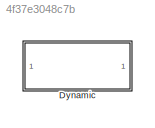
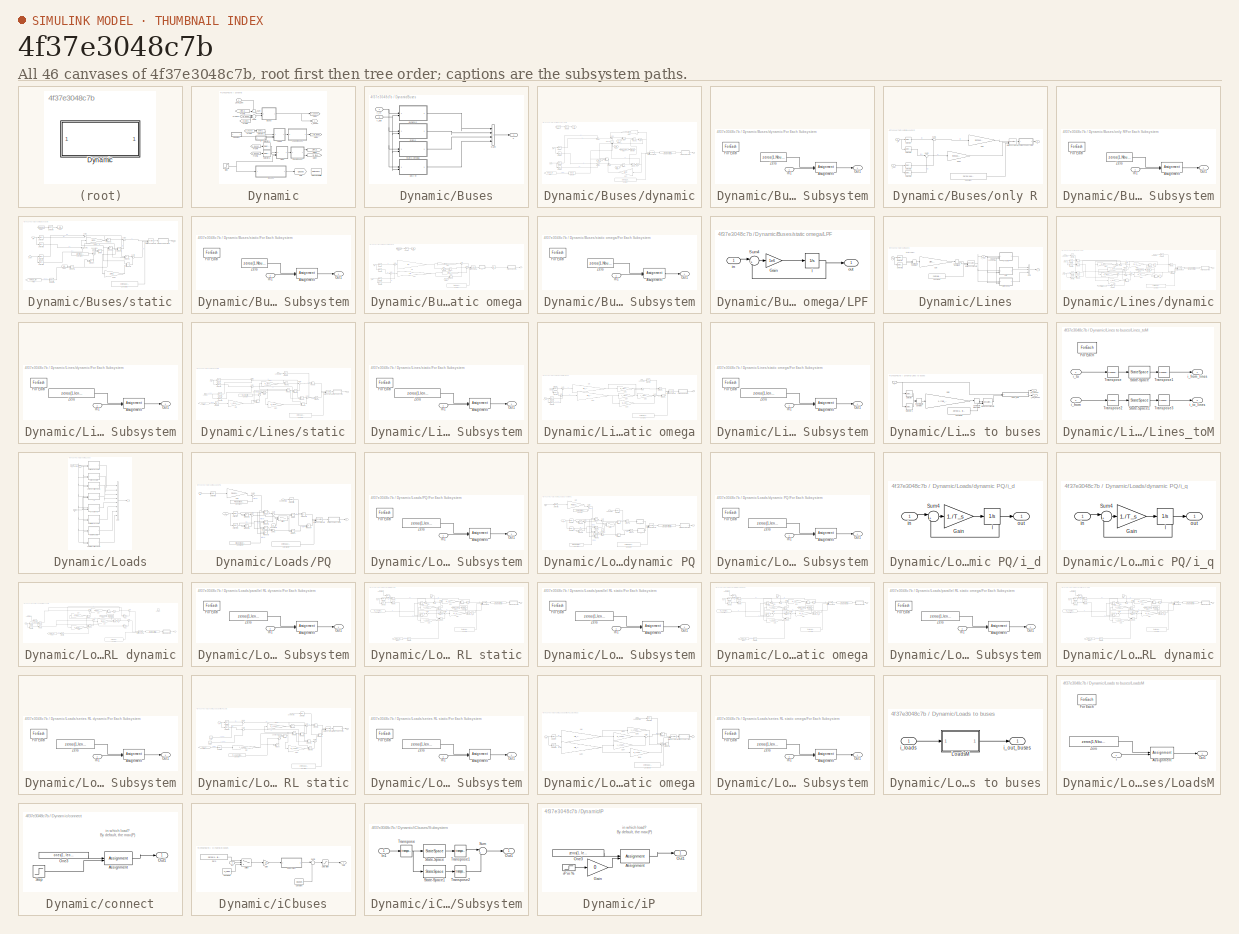
[diagram: thumbnail index - all 46 canvases of the model, root first then tree order]
MODEL slx_4f37e3048c7b
KIND model
CONFIG AbsTol = auto
CONFIG EnableMultiTasking = off
CONFIG FixedStep = auto
CONFIG MaxStep = auto
CONFIG MinStep = auto
CONFIG RelTol = 1e-3
CONFIG SampleTimeConstraint = Unconstrained
CONFIG SolverName = VariableStepAuto
CONFIG StartTime = 0.0
CONFIG StopTime = 10.0
BLOCK [SubSystem] Dynamic
  VariantControl = Dynamic
BLOCK [SubSystem] Dynamic/Buses
BLOCK [Sum] Dynamic/Buses/Sum
  IconShape = rectangular
  Inputs = |++++
BLOCK [SubSystem] Dynamic/Buses/dynamic
  VariantControl = dynamic
BLOCK [Constant] Dynamic/Buses/dynamic/Constant
  Value = zeros(1, sum(bus_complexity == 1))
  VectorParams1D = off
BLOCK [Product] Dynamic/Buses/dynamic/Divide
  Inputs = */
BLOCK [Product] Dynamic/Buses/dynamic/Divide1
  Inputs = */
BLOCK [SubSystem] Dynamic/Buses/dynamic/For Each Subsystem
  TreatAsAtomicUnit = on
BLOCK [Assignment] Dynamic/Buses/dynamic/For Each Subsystem/Assignment
  DiagnosticForDimensions = Warning
  IndexOptions = Index vector (dialog)
  Indices = find(bus_complexity == 1)
  OutputSizes = 1
BLOCK [ForEach] Dynamic/Buses/dynamic/For Each Subsystem/For Each
  DisableCoverage = on
BLOCK [Inport] Dynamic/Buses/dynamic/For Each Subsystem/In1
  Partition = on
  PartitionDimension = 1
  PartitionOffset = 0
  PartitionWidth = 1
BLOCK [Outport] Dynamic/Buses/dynamic/For Each Subsystem/Out1
  ConcatenationDimension = 1
BLOCK [Constant] Dynamic/Buses/dynamic/For Each Subsystem/Zero
  OutDataTypeStr = Inherit: Inherit via back propagation
  Value = zeros(1,Nbuses)
  VectorParams1D = off
BLOCK [From] Dynamic/Buses/dynamic/From
  GotoTag = omega_ref
  TagVisibility = scoped
BLOCK [From] Dynamic/Buses/dynamic/From1
  GotoTag = Cbuses
  TagVisibility = scoped
BLOCK [From] Dynamic/Buses/dynamic/From14
  GotoTag = omega_base
  TagVisibility = scoped
BLOCK [From] Dynamic/Buses/dynamic/From2
  GotoTag = Cb
BLOCK [From] Dynamic/Buses/dynamic/From3
  GotoTag = Cb
  NameLocation = top
BLOCK [From] Dynamic/Buses/dynamic/From4
  GotoTag = Cb
BLOCK [From] Dynamic/Buses/dynamic/From5
  GotoTag = Cb
BLOCK [Gain] Dynamic/Buses/dynamic/Gain1
  Gain = 1./Rcf(bus_complexity == 1)
  NameLocation = top
BLOCK [Gain] Dynamic/Buses/dynamic/Gain2
  Gain = 1./Rcf(bus_complexity == 1)
  NameLocation = top
BLOCK [Goto] Dynamic/Buses/dynamic/Goto
  GotoTag = Cb
BLOCK [Concatenate] Dynamic/Buses/dynamic/Matrix Concatenate
  Mode = Multidimensional array
  NumInputs = 3
BLOCK [Product] Dynamic/Buses/dynamic/Product
  Inputs = 3
BLOCK [Product] Dynamic/Buses/dynamic/Product1
  Inputs = 3
  NameLocation = right
BLOCK [Product] Dynamic/Buses/dynamic/Product2
BLOCK [Product] Dynamic/Buses/dynamic/Product3
BLOCK [Selector] Dynamic/Buses/dynamic/Selector
  IndexOptions = Index vector (dialog),Index vector (dialog)
  Indices = 1,find(bus_complexity == 1)
  InputPortWidth = 3
  NumberOfDimensions = 2
  OutputSizes = 1,1
BLOCK [Selector] Dynamic/Buses/dynamic/Selector1
  IndexOptions = Index vector (dialog),Index vector (dialog)
  Indices = 2,find(bus_complexity == 1)
  InputPortWidth = 3
  NumberOfDimensions = 2
  OutputSizes = 1,1
BLOCK [Selector] Dynamic/Buses/dynamic/Selector2
  IndexOptions = Index vector (dialog),Index vector (dialog)
  Indices = 1,find(bus_complexity == 1)
  InputPortWidth = 3
  NumberOfDimensions = 2
  OutputSizes = 1,1
BLOCK [Selector] Dynamic/Buses/dynamic/Selector3
  IndexOptions = Index vector (dialog),Index vector (dialog)
  Indices = 2,find(bus_complexity == 1)
  InputPortWidth = 3
  NumberOfDimensions = 2
  OutputSizes = 1,1
BLOCK [Selector] Dynamic/Buses/dynamic/Selector4
  IndexOptions = Index vector (dialog)
  Indices = fref.buses(bus_complexity == 1)
  InputPortWidth = length(fref.ref_units)
  OutputSizes = 1
BLOCK [Selector] Dynamic/Buses/dynamic/Selector5
  IndexOptions = Index vector (dialog)
  Indices = find(bus_complexity == 1)
  InputPortWidth = length(Cbuses)
  OutputSizes = 1
BLOCK [Selector] Dynamic/Buses/dynamic/Selector8
  IndexOptions = Index vector (dialog)
  Indices = fref.buses(bus_complexity == 1)
  InputPortWidth = length(fref.ref_units)
  OutputSizes = 1
BLOCK [SignalSpecification] Dynamic/Buses/dynamic/Signal Specification
  Dimensions = [3 sum(bus_complexity == 1)]
BLOCK [Sum] Dynamic/Buses/dynamic/Sum10
  Inputs = |-++
BLOCK [Sum] Dynamic/Buses/dynamic/Sum11
  Inputs = -+|
BLOCK [Sum] Dynamic/Buses/dynamic/Sum12
  Inputs = |+-
BLOCK [Sum] Dynamic/Buses/dynamic/Sum13
  Inputs = -+-|
BLOCK [Inport] Dynamic/Buses/dynamic/i_in
BLOCK [Inport] Dynamic/Buses/dynamic/i_out
  Port = 2
BLOCK [Outport] Dynamic/Buses/dynamic/v
BLOCK [Integrator] Dynamic/Buses/dynamic/vd
  InitialCondition = Grid_lf_op.op_report.Outputs(7).y(bus_complexity == 1)
BLOCK [Integrator] Dynamic/Buses/dynamic/vq
  InitialCondition = Grid_lf_op.op_report.Outputs(8).y(bus_complexity == 1)
BLOCK [Inport] Dynamic/Buses/i_in
BLOCK [Inport] Dynamic/Buses/i_out
  Port = 2
BLOCK [SubSystem] Dynamic/Buses/only R
  Commented = on
  VariantControl = only R
BLOCK [Constant] Dynamic/Buses/only R/Constant
  Value = zeros(1, sum(bus_complexity == 4))
  VectorParams1D = off
BLOCK [SubSystem] Dynamic/Buses/only R/For Each Subsystem
  TreatAsAtomicUnit = on
BLOCK [Assignment] Dynamic/Buses/only R/For Each Subsystem/Assignment
  DiagnosticForDimensions = Warning
  IndexOptions = Index vector (dialog)
  Indices = find(bus_complexity == 4)
  OutputSizes = 1
BLOCK [ForEach] Dynamic/Buses/only R/For Each Subsystem/For Each
  DisableCoverage = on
BLOCK [Inport] Dynamic/Buses/only R/For Each Subsystem/In1
  Partition = on
  PartitionDimension = 1
  PartitionOffset = 0
  PartitionWidth = 1
BLOCK [Outport] Dynamic/Buses/only R/For Each Subsystem/Out1
  ConcatenationDimension = 1
BLOCK [Constant] Dynamic/Buses/only R/For Each Subsystem/Zero
  OutDataTypeStr = Inherit: Inherit via back propagation
  Value = zeros(1,Nbuses)
  VectorParams1D = off
BLOCK [Gain] Dynamic/Buses/only R/Gain
  Gain = Rcf(bus_complexity == 4)
BLOCK [Gain] Dynamic/Buses/only R/Gain2
  Gain = Rcf(bus_complexity == 4)
BLOCK [Concatenate] Dynamic/Buses/only R/Matrix Concatenate
  Mode = Multidimensional array
  NumInputs = 3
BLOCK [Selector] Dynamic/Buses/only R/Selector
  IndexOptions = Index vector (dialog),Index vector (dialog)
  Indices = 1,find(bus_complexity == 4)
  InputPortWidth = 3
  NumberOfDimensions = 2
  OutputSizes = 1,1
BLOCK [Selector] Dynamic/Buses/only R/Selector1
  IndexOptions = Index vector (dialog),Index vector (dialog)
  Indices = 2,find(bus_complexity == 4)
  InputPortWidth = 3
  NumberOfDimensions = 2
  OutputSizes = 1,1
BLOCK [Selector] Dynamic/Buses/only R/Selector2
  IndexOptions = Index vector (dialog),Index vector (dialog)
  Indices = 1,find(bus_complexity == 4)
  InputPortWidth = 3
  NumberOfDimensions = 2
  OutputSizes = 1,1
BLOCK [Selector] Dynamic/Buses/only R/Selector3
  IndexOptions = Index vector (dialog),Index vector (dialog)
  Indices = 2,find(bus_complexity == 4)
  InputPortWidth = 3
  NumberOfDimensions = 2
  OutputSizes = 1,1
BLOCK [Sum] Dynamic/Buses/only R/Sum1
  Inputs = |+-
BLOCK [Sum] Dynamic/Buses/only R/Sum2
  Inputs = |+-
BLOCK [Inport] Dynamic/Buses/only R/i_in
BLOCK [Inport] Dynamic/Buses/only R/i_out
  Port = 2
BLOCK [Outport] Dynamic/Buses/only R/v
BLOCK [SubSystem] Dynamic/Buses/static
  Commented = on
  VariantControl = static
BLOCK [SubSystem] Dynamic/Buses/static omega
  Commented = on
  VariantControl = static omega
BLOCK [Constant] Dynamic/Buses/static omega/Constant
  Value = zeros(1, sum(bus_complexity == 3))
  VectorParams1D = off
BLOCK [SubSystem] Dynamic/Buses/static omega/For Each Subsystem
  TreatAsAtomicUnit = on
BLOCK [Assignment] Dynamic/Buses/static omega/For Each Subsystem/Assignment
  DiagnosticForDimensions = Warning
  IndexOptions = Index vector (dialog)
  Indices = find(bus_complexity == 3)
  OutputSizes = 1
BLOCK [ForEach] Dynamic/Buses/static omega/For Each Subsystem/For Each
  DisableCoverage = on
BLOCK [Inport] Dynamic/Buses/static omega/For Each Subsystem/In1
  Partition = on
  PartitionDimension = 1
  PartitionOffset = 0
  PartitionWidth = 1
BLOCK [Outport] Dynamic/Buses/static omega/For Each Subsystem/Out1
  ConcatenationDimension = 1
BLOCK [Constant] Dynamic/Buses/static omega/For Each Subsystem/Zero
  OutDataTypeStr = Inherit: Inherit via back propagation
  Value = zeros(1,Nbuses)
  VectorParams1D = off
BLOCK [From] Dynamic/Buses/static omega/From
  GotoTag = Cb
BLOCK [From] Dynamic/Buses/static omega/From1
  GotoTag = Cbuses
  TagVisibility = scoped
BLOCK [From] Dynamic/Buses/static omega/From2
  GotoTag = Cb
BLOCK [Gain] Dynamic/Buses/static omega/Gain
  Gain = 1./((1./Rcf(bus_complexity == 3)).^2+Cbuses(bus_complexity == 3).^2)
BLOCK [Gain] Dynamic/Buses/static omega/Gain1
  Gain = 1./((1./Rcf(bus_complexity == 3)).^2+Cbuses(bus_complexity == 3).^2)
BLOCK [Gain] Dynamic/Buses/static omega/Gain3
  Gain = 1./Rcf(bus_complexity == 3)
BLOCK [Gain] Dynamic/Buses/static omega/Gain5
  Gain = 1./Rcf(bus_complexity == 3)
BLOCK [Goto] Dynamic/Buses/static omega/Goto
  GotoTag = Cb
BLOCK [InitialCondition] Dynamic/Buses/static omega/IC
  Value = [Grid_lf_op.op_report.Outputs(7).y(bus_complexity == 3); Grid_lf_op.op_report.Outputs(8).y(bus_complexity == 3); 0*Grid_lf_op.op_report.Outputs(7).y(bus_complexity == 3)]
BLOCK [SubSystem] Dynamic/Buses/static omega/LPF
  Commented = through
BLOCK [Gain] Dynamic/Buses/static omega/LPF/Gain
  Gain = 1e6
BLOCK [Integrator] Dynamic/Buses/static omega/LPF/I
  InitialCondition = [Grid_lf_op.op_report.Outputs(7).y(bus_complexity == 3); Grid_lf_op.op_report.Outputs(8).y(bus_complexity == 3); 0*Grid_lf_op.op_report.Outputs(7).y(bus_complexity == 3)]
BLOCK [Sum] Dynamic/Buses/static omega/LPF/Sum4
  Inputs = |+-
BLOCK [Inport] Dynamic/Buses/static omega/LPF/in
BLOCK [Outport] Dynamic/Buses/static omega/LPF/out
BLOCK [Concatenate] Dynamic/Buses/static omega/Matrix Concatenate
  Mode = Multidimensional array
  NumInputs = 3
BLOCK [Product] Dynamic/Buses/static omega/Product
BLOCK [Product] Dynamic/Buses/static omega/Product1
BLOCK [Selector] Dynamic/Buses/static omega/Selector
  IndexOptions = Index vector (dialog),Index vector (dialog)
  Indices = 1,find(bus_complexity == 3)
  InputPortWidth = 3
  NumberOfDimensions = 2
  OutputSizes = 1,1
BLOCK [Selector] Dynamic/Buses/static omega/Selector1
  IndexOptions = Index vector (dialog),Index vector (dialog)
  Indices = 2,find(bus_complexity == 3)
  InputPortWidth = 3
  NumberOfDimensions = 2
  OutputSizes = 1,1
BLOCK [Selector] Dynamic/Buses/static omega/Selector2
  IndexOptions = Index vector (dialog),Index vector (dialog)
  Indices = 1,find(bus_complexity == 3)
  InputPortWidth = 3
  NumberOfDimensions = 2
  OutputSizes = 1,1
BLOCK [Selector] Dynamic/Buses/static omega/Selector3
  IndexOptions = Index vector (dialog),Index vector (dialog)
  Indices = 2,find(bus_complexity == 3)
  InputPortWidth = 3
  NumberOfDimensions = 2
  OutputSizes = 1,1
BLOCK [Selector] Dynamic/Buses/static omega/Selector5
  IndexOptions = Index vector (dialog)
  Indices = find(bus_complexity == 3)
  InputPortWidth = length(Cbuses)
  OutputSizes = 1
BLOCK [Sum] Dynamic/Buses/static omega/Sum
  Inputs = |++
BLOCK [Sum] Dynamic/Buses/static omega/Sum1
  Inputs = |+-
BLOCK [Sum] Dynamic/Buses/static omega/Sum2
  Inputs = |+-
BLOCK [Sum] Dynamic/Buses/static omega/Sum4
  Inputs = |-+
BLOCK [Inport] Dynamic/Buses/static omega/i_in
BLOCK [Inport] Dynamic/Buses/static omega/i_out
  Port = 2
BLOCK [Outport] Dynamic/Buses/static omega/v
BLOCK [Constant] Dynamic/Buses/static/Constant
  Value = (1./Rcf(bus_complexity == 2)).^2
  VectorParams1D = off
BLOCK [Constant] Dynamic/Buses/static/Constant1
BLOCK [Constant] Dynamic/Buses/static/Constant2
  Value = zeros(1, sum(bus_complexity == 2))
  VectorParams1D = off
BLOCK [Product] Dynamic/Buses/static/Divide
  Inputs = */
BLOCK [SubSystem] Dynamic/Buses/static/For Each Subsystem
  TreatAsAtomicUnit = on
BLOCK [Assignment] Dynamic/Buses/static/For Each Subsystem/Assignment
  DiagnosticForDimensions = Warning
  IndexOptions = Index vector (dialog)
  Indices = find(bus_complexity == 2)
  OutputSizes = 1
BLOCK [ForEach] Dynamic/Buses/static/For Each Subsystem/For Each
  DisableCoverage = on
BLOCK [Inport] Dynamic/Buses/static/For Each Subsystem/In1
  Partition = on
  PartitionDimension = 1
  PartitionOffset = 0
  PartitionWidth = 1
BLOCK [Outport] Dynamic/Buses/static/For Each Subsystem/Out1
  ConcatenationDimension = 1
BLOCK [Constant] Dynamic/Buses/static/For Each Subsystem/Zero
  OutDataTypeStr = Inherit: Inherit via back propagation
  Value = zeros(1,Nbuses)
  VectorParams1D = off
BLOCK [From] Dynamic/Buses/static/From
  GotoTag = omega_ref
  TagVisibility = scoped
BLOCK [From] Dynamic/Buses/static/From1
  GotoTag = Cbuses
  TagVisibility = scoped
BLOCK [From] Dynamic/Buses/static/From2
  GotoTag = Cb
BLOCK [Gain] Dynamic/Buses/static/Gain1
  Gain = 1./Rcf(bus_complexity == 2)
BLOCK [Gain] Dynamic/Buses/static/Gain2
  Gain = 1./Rcf(bus_complexity == 2)
BLOCK [Goto] Dynamic/Buses/static/Goto
  GotoTag = Cb
BLOCK [Concatenate] Dynamic/Buses/static/Matrix Concatenate
  Mode = Multidimensional array
  NumInputs = 3
BLOCK [Product] Dynamic/Buses/static/Product
BLOCK [Product] Dynamic/Buses/static/Product1
BLOCK [Product] Dynamic/Buses/static/Product2
BLOCK [Product] Dynamic/Buses/static/Product3
BLOCK [Product] Dynamic/Buses/static/Product4
BLOCK [Product] Dynamic/Buses/static/Product5
BLOCK [Product] Dynamic/Buses/static/Product6
BLOCK [Selector] Dynamic/Buses/static/Selector
  IndexOptions = Index vector (dialog),Index vector (dialog)
  Indices = 1,find(bus_complexity == 2)
  InputPortWidth = 3
  NumberOfDimensions = 2
  OutputSizes = 1,1
BLOCK [Selector] Dynamic/Buses/static/Selector1
  IndexOptions = Index vector (dialog),Index vector (dialog)
  Indices = 2,find(bus_complexity == 2)
  InputPortWidth = 3
  NumberOfDimensions = 2
  OutputSizes = 1,1
BLOCK [Selector] Dynamic/Buses/static/Selector2
  IndexOptions = Index vector (dialog),Index vector (dialog)
  Indices = 1,find(bus_complexity == 2)
  InputPortWidth = 3
  NumberOfDimensions = 2
  OutputSizes = 1,1
BLOCK [Selector] Dynamic/Buses/static/Selector3
  IndexOptions = Index vector (dialog),Index vector (dialog)
  Indices = 2,find(bus_complexity == 2)
  InputPortWidth = 3
  NumberOfDimensions = 2
  OutputSizes = 1,1
BLOCK [Selector] Dynamic/Buses/static/Selector4
  IndexOptions = Index vector (dialog)
  Indices = fref.buses(bus_complexity == 2)
  InputPortWidth = length(fref.ref_units)
  OutputSizes = 1
BLOCK [Selector] Dynamic/Buses/static/Selector5
  IndexOptions = Index vector (dialog)
  Indices = find(bus_complexity == 2)
  InputPortWidth = length(Cbuses)
  OutputSizes = 1
BLOCK [Sum] Dynamic/Buses/static/Sum
  Inputs = |++
BLOCK [Sum] Dynamic/Buses/static/Sum1
  Inputs = |-+
BLOCK [Sum] Dynamic/Buses/static/Sum2
  Inputs = |+-
BLOCK [Sum] Dynamic/Buses/static/Sum3
  Inputs = |++
BLOCK [Sum] Dynamic/Buses/static/Sum4
  Inputs = |-+
BLOCK [Inport] Dynamic/Buses/static/i_in
BLOCK [Inport] Dynamic/Buses/static/i_out
  Port = 2
BLOCK [Outport] Dynamic/Buses/static/v
BLOCK [Outport] Dynamic/Buses/v
BLOCK [From] Dynamic/From10
  GotoTag = i_to_loads
BLOCK [From] Dynamic/From3
  GotoTag = v_buses
BLOCK [From] Dynamic/From4
  GotoTag = v_buses
BLOCK [From] Dynamic/From5
  GotoTag = v_buses
BLOCK [From] Dynamic/From8
  GotoTag = i_from_lines
BLOCK [From] Dynamic/From9
  GotoTag = i_to_lines
BLOCK [Goto] Dynamic/Goto
  GotoTag = Cbuses
  TagVisibility = scoped
BLOCK [GotoTagVisibility] Dynamic/Goto Tag Visibility
  GotoTag = Cbuses
BLOCK [Goto] Dynamic/Goto1
  GotoTag = v_buses
BLOCK [Goto] Dynamic/Goto3
  GotoTag = i_from_lines
BLOCK [Goto] Dynamic/Goto4
  GotoTag = i_to_lines
BLOCK [Goto] Dynamic/Goto5
  GotoTag = i_to_loads
BLOCK [SubSystem] Dynamic/Lines
BLOCK [SubSystem] Dynamic/Lines to buses
BLOCK [ComplexToRealImag] Dynamic/Lines to buses/Complex to Real-Imag
BLOCK [Constant] Dynamic/Lines to buses/Constant1
  Value = zeros(1, length(R_Lines))
  VectorParams1D = off
BLOCK [Gain] Dynamic/Lines to buses/Gain
  Gain = 1./tap_lines.*(cos(shift_lines)-1i*sin(shift_lines))
BLOCK [SubSystem] Dynamic/Lines to buses/Lines_toM
  TreatAsAtomicUnit = on
BLOCK [ForEach] Dynamic/Lines to buses/Lines_toM/For Each
  DisableCoverage = on
BLOCK [StateSpace] Dynamic/Lines to buses/Lines_toM/State-Space
  A = []
  B = []
  C = []
  D = Lines_toM
  InitialCondition = 0
  ParameterTunability = Optimized
BLOCK [StateSpace] Dynamic/Lines to buses/Lines_toM/State-Space1
  A = []
  B = []
  C = []
  D = Lines_fromM
  InitialCondition = 0
  ParameterTunability = Optimized
BLOCK [Math] Dynamic/Lines to buses/Lines_toM/Transpose
  Operator = transpose
BLOCK [Math] Dynamic/Lines to buses/Lines_toM/Transpose1
  Operator = transpose
BLOCK [Math] Dynamic/Lines to buses/Lines_toM/Transpose2
  Operator = transpose
BLOCK [Math] Dynamic/Lines to buses/Lines_toM/Transpose3
  Operator = transpose
BLOCK [Inport] Dynamic/Lines to buses/Lines_toM/i_from
  Partition = on
  PartitionDimension = 1
  PartitionOffset = 0
  PartitionWidth = 1
  Port = 2
BLOCK [Outport] Dynamic/Lines to buses/Lines_toM/i_from_lines
  ConcatenationDimension = 1
BLOCK [Inport] Dynamic/Lines to buses/Lines_toM/i_to
  Partition = on
  PartitionDimension = 1
  PartitionOffset = 0
  PartitionWidth = 1
BLOCK [Outport] Dynamic/Lines to buses/Lines_toM/i_to_lines
  ConcatenationDimension = 1
  Port = 2
BLOCK [Concatenate] Dynamic/Lines to buses/Matrix Concatenate
  Mode = Multidimensional array
  NumInputs = 3
BLOCK [RealImagToComplex] Dynamic/Lines to buses/Real-Imag to Complex
BLOCK [Selector] Dynamic/Lines to buses/Selector
  IndexOptions = Index vector (dialog),Select all
  Indices = 1,1
  InputPortWidth = 3
  NumberOfDimensions = 2
  OutputSizes = 1,1
BLOCK [Selector] Dynamic/Lines to buses/Selector1
  IndexOptions = Index vector (dialog),Select all
  Indices = 2,1
  InputPortWidth = 3
  NumberOfDimensions = 2
  OutputSizes = 1,1
BLOCK [Inport] Dynamic/Lines to buses/i
BLOCK [Outport] Dynamic/Lines to buses/i_in_buses
BLOCK [Outport] Dynamic/Lines to buses/i_out_buses
  Port = 2
BLOCK [ComplexToRealImag] Dynamic/Lines/Complex to Real-Imag
BLOCK [Constant] Dynamic/Lines/Constant1
  Value = zeros(1, length(R_Lines))
  VectorParams1D = off
BLOCK [Gain] Dynamic/Lines/Gain
  Gain = 1./tap_lines.*(cos(shift_lines)-1i*sin(shift_lines))
BLOCK [Concatenate] Dynamic/Lines/Matrix Concatenate
  Mode = Multidimensional array
  NumInputs = 3
BLOCK [RealImagToComplex] Dynamic/Lines/Real-Imag to Complex
BLOCK [Selector] Dynamic/Lines/Selector
  IndexOptions = Index vector (dialog),Select all
  Indices = 1,1
  InputPortWidth = 3
  NumberOfDimensions = 2
  OutputSizes = 1,1
BLOCK [Selector] Dynamic/Lines/Selector1
  IndexOptions = Index vector (dialog),Select all
  Indices = 2,1
  InputPortWidth = 3
  NumberOfDimensions = 2
  OutputSizes = 1,1
BLOCK [Sum] Dynamic/Lines/Sum
  IconShape = rectangular
  Inputs = |+++
BLOCK [Inport] Dynamic/Lines/connected
  Port = 3
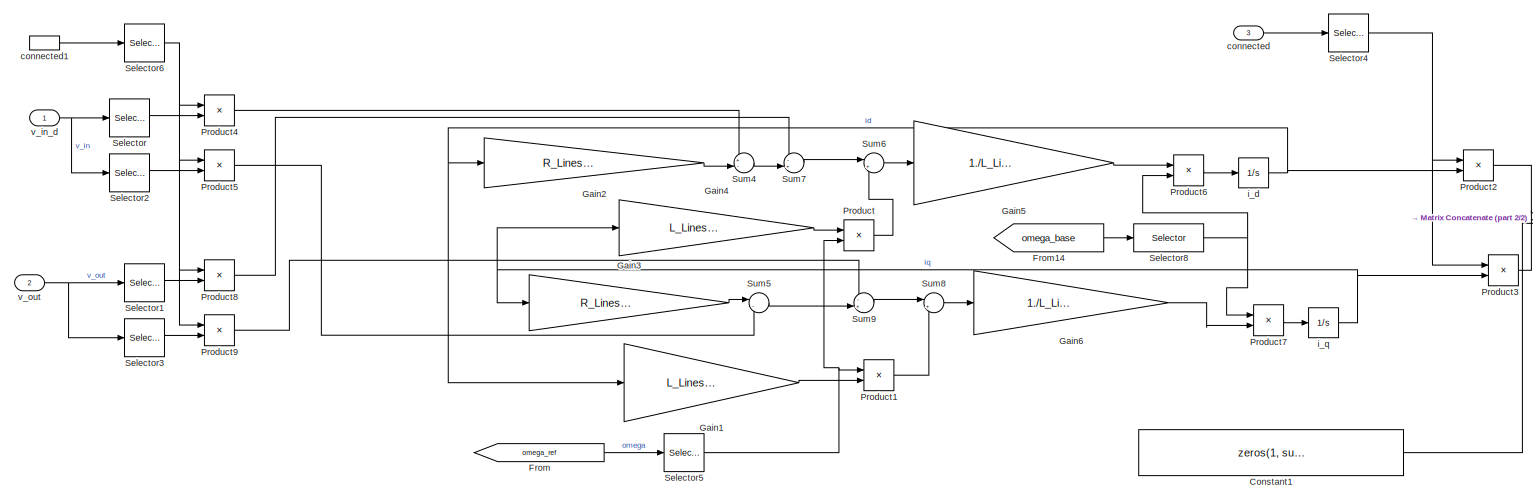
[diagram: Dynamic/Lines/dynamic - part 1/2, most of the canvas]
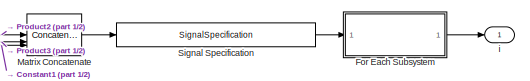
[diagram: Dynamic/Lines/dynamic - part 2/2, middle right region]
BLOCK [SubSystem] Dynamic/Lines/dynamic
  VariantControl = dynamic
BLOCK [Constant] Dynamic/Lines/dynamic/Constant1
  Value = zeros(1, sum(line_complexity == 1))
  VectorParams1D = off
BLOCK [SubSystem] Dynamic/Lines/dynamic/For Each Subsystem
  TreatAsAtomicUnit = on
BLOCK [Assignment] Dynamic/Lines/dynamic/For Each Subsystem/Assignment
  DiagnosticForDimensions = Warning
  IndexOptions = Index vector (dialog)
  Indices = find(line_complexity == 1)
  OutputSizes = 1
BLOCK [ForEach] Dynamic/Lines/dynamic/For Each Subsystem/For Each
  DisableCoverage = on
BLOCK [Inport] Dynamic/Lines/dynamic/For Each Subsystem/In1
  Partition = on
  PartitionDimension = 1
  PartitionOffset = 0
  PartitionWidth = 1
BLOCK [Outport] Dynamic/Lines/dynamic/For Each Subsystem/Out1
  ConcatenationDimension = 1
BLOCK [Constant] Dynamic/Lines/dynamic/For Each Subsystem/Zero
  OutDataTypeStr = Inherit: Inherit via back propagation
  Value = zeros(1,length(From_buses))
  VectorParams1D = off
BLOCK [From] Dynamic/Lines/dynamic/From
  GotoTag = omega_ref
  TagVisibility = scoped
BLOCK [From] Dynamic/Lines/dynamic/From14
  GotoTag = omega_base
  TagVisibility = scoped
BLOCK [Gain] Dynamic/Lines/dynamic/Gain1
  Gain = L_Lines(line_complexity == 1)
BLOCK [Gain] Dynamic/Lines/dynamic/Gain2
  Gain = R_Lines(line_complexity == 1)
BLOCK [Gain] Dynamic/Lines/dynamic/Gain3
  Gain = R_Lines(line_complexity == 1)
BLOCK [Gain] Dynamic/Lines/dynamic/Gain4
  Gain = L_Lines(line_complexity == 1)
BLOCK [Gain] Dynamic/Lines/dynamic/Gain5
  Gain = 1./L_Lines(line_complexity == 1)
BLOCK [Gain] Dynamic/Lines/dynamic/Gain6
  Gain = 1./L_Lines(line_complexity == 1)
BLOCK [Concatenate] Dynamic/Lines/dynamic/Matrix Concatenate
  Mode = Multidimensional array
  NumInputs = 3
BLOCK [Product] Dynamic/Lines/dynamic/Product
BLOCK [Product] Dynamic/Lines/dynamic/Product1
BLOCK [Product] Dynamic/Lines/dynamic/Product2
BLOCK [Product] Dynamic/Lines/dynamic/Product3
BLOCK [Product] Dynamic/Lines/dynamic/Product4
BLOCK [Product] Dynamic/Lines/dynamic/Product5
BLOCK [Product] Dynamic/Lines/dynamic/Product6
BLOCK [Product] Dynamic/Lines/dynamic/Product7
BLOCK [Product] Dynamic/Lines/dynamic/Product8
BLOCK [Product] Dynamic/Lines/dynamic/Product9
BLOCK [Selector] Dynamic/Lines/dynamic/Selector
  IndexOptions = Index vector (dialog),Index vector (dialog)
  Indices = 1,find(line_complexity == 1)
  InputPortWidth = 3
  NumberOfDimensions = 2
  OutputSizes = 1,1
BLOCK [Selector] Dynamic/Lines/dynamic/Selector1
  IndexOptions = Index vector (dialog),Index vector (dialog)
  Indices = 1,find(line_complexity == 1)
  InputPortWidth = 3
  NumberOfDimensions = 2
  OutputSizes = 1,1
BLOCK [Selector] Dynamic/Lines/dynamic/Selector2
  IndexOptions = Index vector (dialog),Index vector (dialog)
  Indices = 2,find(line_complexity == 1)
  InputPortWidth = 3
  NumberOfDimensions = 2
  OutputSizes = 1,1
BLOCK [Selector] Dynamic/Lines/dynamic/Selector3
  IndexOptions = Index vector (dialog),Index vector (dialog)
  Indices = 2,find(line_complexity == 1)
  InputPortWidth = 3
  NumberOfDimensions = 2
  OutputSizes = 1,1
BLOCK [Selector] Dynamic/Lines/dynamic/Selector4
  IndexOptions = Index vector (dialog)
  Indices = find(line_complexity == 1)
  InputPortWidth = length(From_buses)
  OutputSizes = 1
BLOCK [Selector] Dynamic/Lines/dynamic/Selector5
  IndexOptions = Index vector (dialog)
  Indices = fref.lines(line_complexity == 1)
  InputPortWidth = length(fref.ref_units)
  OutputSizes = 1
BLOCK [Selector] Dynamic/Lines/dynamic/Selector6
  IndexOptions = Index vector (dialog)
  Indices = find(line_complexity == 1)
  InputPortWidth = length(From_buses)
  OutputSizes = 1
BLOCK [Selector] Dynamic/Lines/dynamic/Selector8
  IndexOptions = Index vector (dialog)
  Indices = fref.lines(line_complexity == 1)
  InputPortWidth = length(fref.ref_units)
  OutputSizes = 1
BLOCK [SignalSpecification] Dynamic/Lines/dynamic/Signal Specification
  Dimensions = [3 sum(line_complexity == 1)]
BLOCK [Sum] Dynamic/Lines/dynamic/Sum4
  Inputs = +-|
BLOCK [Sum] Dynamic/Lines/dynamic/Sum5
  Inputs = |-+
BLOCK [Sum] Dynamic/Lines/dynamic/Sum6
  Inputs = |++
BLOCK [Sum] Dynamic/Lines/dynamic/Sum7
  Inputs = -+|
BLOCK [Sum] Dynamic/Lines/dynamic/Sum8
  Inputs = |+-
BLOCK [Sum] Dynamic/Lines/dynamic/Sum9
  Inputs = -+|
BLOCK [Inport] Dynamic/Lines/dynamic/connected
  Port = 3
BLOCK [InportShadow] Dynamic/Lines/dynamic/connected1
  Port = 3
BLOCK [Outport] Dynamic/Lines/dynamic/i
BLOCK [Integrator] Dynamic/Lines/dynamic/i_d
  InitialCondition = Grid_lf_op.op_report.Outputs(3).y(line_complexity == 1)
BLOCK [Integrator] Dynamic/Lines/dynamic/i_q
  InitialCondition = Grid_lf_op.op_report.Outputs(4).y(line_complexity == 1)
BLOCK [Inport] Dynamic/Lines/dynamic/v_in_d
  IconDisplay = Signal name
BLOCK [Inport] Dynamic/Lines/dynamic/v_out
  Port = 2
BLOCK [Outport] Dynamic/Lines/i
BLOCK [SubSystem] Dynamic/Lines/static
  Commented = on
  VariantControl = static
BLOCK [SubSystem] Dynamic/Lines/static omega
  Commented = on
  VariantControl = static_omega
BLOCK [Constant] Dynamic/Lines/static omega/Constant1
  Value = zeros(1, sum(line_complexity == 3))
  VectorParams1D = off
BLOCK [SubSystem] Dynamic/Lines/static omega/For Each Subsystem
  TreatAsAtomicUnit = on
BLOCK [Assignment] Dynamic/Lines/static omega/For Each Subsystem/Assignment
  DiagnosticForDimensions = Warning
  IndexOptions = Index vector (dialog)
  Indices = find(line_complexity == 3)
  OutputSizes = 1
BLOCK [ForEach] Dynamic/Lines/static omega/For Each Subsystem/For Each
  DisableCoverage = on
BLOCK [Inport] Dynamic/Lines/static omega/For Each Subsystem/In1
  Partition = on
  PartitionDimension = 1
  PartitionOffset = 0
  PartitionWidth = 1
BLOCK [Outport] Dynamic/Lines/static omega/For Each Subsystem/Out1
  ConcatenationDimension = 1
BLOCK [Constant] Dynamic/Lines/static omega/For Each Subsystem/Zero
  OutDataTypeStr = Inherit: Inherit via back propagation
  Value = zeros(1,length(From_buses))
  VectorParams1D = off
BLOCK [Gain] Dynamic/Lines/static omega/Gain
  Gain = 1./(R_Lines(line_complexity == 3).^2+L_Lines(line_complexity == 3).^2)
BLOCK [Gain] Dynamic/Lines/static omega/Gain1
  Gain = 1./(R_Lines(line_complexity == 3).^2+L_Lines(line_complexity == 3).^2)
BLOCK [Gain] Dynamic/Lines/static omega/Gain3
  Gain = R_Lines(line_complexity == 3)
BLOCK [Gain] Dynamic/Lines/static omega/Gain4
  Gain = L_Lines(line_complexity == 3)
BLOCK [Gain] Dynamic/Lines/static omega/Gain5
  Gain = L_Lines(line_complexity == 3)
BLOCK [Gain] Dynamic/Lines/static omega/Gain6
  Gain = R_Lines(line_complexity == 3)
BLOCK [Concatenate] Dynamic/Lines/static omega/Matrix Concatenate
  Mode = Multidimensional array
  NumInputs = 3
BLOCK [Product] Dynamic/Lines/static omega/Product2
BLOCK [Product] Dynamic/Lines/static omega/Product3
BLOCK [Selector] Dynamic/Lines/static omega/Selector
  IndexOptions = Index vector (dialog),Index vector (dialog)
  Indices = 1,find(line_complexity == 3)
  InputPortWidth = 3
  NumberOfDimensions = 2
  OutputSizes = 1,1
BLOCK [Selector] Dynamic/Lines/static omega/Selector1
  IndexOptions = Index vector (dialog),Index vector (dialog)
  Indices = 1,find(line_complexity == 3)
  InputPortWidth = 3
  NumberOfDimensions = 2
  OutputSizes = 1,1
BLOCK [Selector] Dynamic/Lines/static omega/Selector2
  IndexOptions = Index vector (dialog),Index vector (dialog)
  Indices = 2,find(line_complexity == 3)
  InputPortWidth = 3
  NumberOfDimensions = 2
  OutputSizes = 1,1
BLOCK [Selector] Dynamic/Lines/static omega/Selector3
  IndexOptions = Index vector (dialog),Index vector (dialog)
  Indices = 2,find(line_complexity == 3)
  InputPortWidth = 3
  NumberOfDimensions = 2
  OutputSizes = 1,1
BLOCK [Selector] Dynamic/Lines/static omega/Selector4
  IndexOptions = Index vector (dialog)
  Indices = find(line_complexity == 3)
  InputPortWidth = length(From_buses)
  OutputSizes = 1
BLOCK [Sum] Dynamic/Lines/static omega/Sum
  Inputs = |++
BLOCK [Sum] Dynamic/Lines/static omega/Sum1
  Inputs = |+-
BLOCK [Sum] Dynamic/Lines/static omega/Sum2
  Inputs = |+-
BLOCK [Sum] Dynamic/Lines/static omega/Sum3
  Inputs = |-+
BLOCK [Inport] Dynamic/Lines/static omega/connected
  Port = 3
BLOCK [Outport] Dynamic/Lines/static omega/i
BLOCK [Inport] Dynamic/Lines/static omega/v_in_d
  IconDisplay = Signal name
BLOCK [Inport] Dynamic/Lines/static omega/v_out
  IconDisplay = Signal name
  Port = 2
BLOCK [Constant] Dynamic/Lines/static/Constant
  Value = R_Lines(line_complexity == 2).^2
  VectorParams1D = off
BLOCK [Constant] Dynamic/Lines/static/Constant1
BLOCK [Constant] Dynamic/Lines/static/Constant2
  Value = zeros(1, sum(line_complexity == 2))
  VectorParams1D = off
BLOCK [Product] Dynamic/Lines/static/Divide
  Inputs = */
BLOCK [SubSystem] Dynamic/Lines/static/For Each Subsystem
  TreatAsAtomicUnit = on
BLOCK [Assignment] Dynamic/Lines/static/For Each Subsystem/Assignment
  DiagnosticForDimensions = Warning
  IndexOptions = Index vector (dialog)
  Indices = find(line_complexity == 2)
  OutputSizes = 1
BLOCK [ForEach] Dynamic/Lines/static/For Each Subsystem/For Each
  DisableCoverage = on
BLOCK [Inport] Dynamic/Lines/static/For Each Subsystem/In1
  Partition = on
  PartitionDimension = 1
  PartitionOffset = 0
  PartitionWidth = 1
BLOCK [Outport] Dynamic/Lines/static/For Each Subsystem/Out1
  ConcatenationDimension = 1
BLOCK [Constant] Dynamic/Lines/static/For Each Subsystem/Zero
  OutDataTypeStr = Inherit: Inherit via back propagation
  Value = zeros(1,length(From_buses))
  VectorParams1D = off
BLOCK [From] Dynamic/Lines/static/From
  GotoTag = omega_ref
  TagVisibility = scoped
BLOCK [Gain] Dynamic/Lines/static/Gain
  Gain = L_Lines(line_complexity == 2)
BLOCK [Gain] Dynamic/Lines/static/Gain1
  Gain = R_Lines(line_complexity == 2)
BLOCK [Gain] Dynamic/Lines/static/Gain2
  Gain = R_Lines(line_complexity == 2)
BLOCK [Concatenate] Dynamic/Lines/static/Matrix Concatenate
  Mode = Multidimensional array
  NumInputs = 3
BLOCK [Product] Dynamic/Lines/static/Product
BLOCK [Product] Dynamic/Lines/static/Product1
BLOCK [Product] Dynamic/Lines/static/Product2
BLOCK [Product] Dynamic/Lines/static/Product3
BLOCK [Product] Dynamic/Lines/static/Product4
BLOCK [Product] Dynamic/Lines/static/Product5
BLOCK [Product] Dynamic/Lines/static/Product6
BLOCK [Product] Dynamic/Lines/static/Product7
BLOCK [Selector] Dynamic/Lines/static/Selector
  IndexOptions = Index vector (dialog),Index vector (dialog)
  Indices = 1,find(line_complexity == 2)
  InputPortWidth = 3
  NumberOfDimensions = 2
  OutputSizes = 1,1
BLOCK [Selector] Dynamic/Lines/static/Selector1
  IndexOptions = Index vector (dialog),Index vector (dialog)
  Indices = 1,find(line_complexity == 2)
  InputPortWidth = 3
  NumberOfDimensions = 2
  OutputSizes = 1,1
BLOCK [Selector] Dynamic/Lines/static/Selector2
  IndexOptions = Index vector (dialog),Index vector (dialog)
  Indices = 2,find(line_complexity == 2)
  InputPortWidth = 3
  NumberOfDimensions = 2
  OutputSizes = 1,1
BLOCK [Selector] Dynamic/Lines/static/Selector3
  IndexOptions = Index vector (dialog),Index vector (dialog)
  Indices = 2,find(line_complexity == 2)
  InputPortWidth = 3
  NumberOfDimensions = 2
  OutputSizes = 1,1
BLOCK [Selector] Dynamic/Lines/static/Selector4
  IndexOptions = Index vector (dialog)
  Indices = find(line_complexity == 2)
  InputPortWidth = length(From_buses)
  OutputSizes = 1
BLOCK [Selector] Dynamic/Lines/static/Selector5
  IndexOptions = Index vector (dialog)
  Indices = fref.lines(line_complexity == 2)
  InputPortWidth = length(fref.ref_units)
  OutputSizes = 1
BLOCK [Sum] Dynamic/Lines/static/Sum
  Inputs = |++
BLOCK [Sum] Dynamic/Lines/static/Sum1
  Inputs = |+-
BLOCK [Sum] Dynamic/Lines/static/Sum2
  Inputs = |+-
BLOCK [Sum] Dynamic/Lines/static/Sum3
  Inputs = |++
BLOCK [Sum] Dynamic/Lines/static/Sum4
  Inputs = |-+
BLOCK [Inport] Dynamic/Lines/static/connected
  Port = 3
BLOCK [Outport] Dynamic/Lines/static/i
BLOCK [Inport] Dynamic/Lines/static/v_in
  IconDisplay = Signal name
BLOCK [Inport] Dynamic/Lines/static/v_out_d
  Port = 2
BLOCK [Inport] Dynamic/Lines/v_in
BLOCK [Inport] Dynamic/Lines/v_out
  Port = 2
BLOCK [SubSystem] Dynamic/Loads
BLOCK [SubSystem] Dynamic/Loads to buses
BLOCK [SubSystem] Dynamic/Loads to buses/LoadsM
  TreatAsAtomicUnit = on
BLOCK [Assignment] Dynamic/Loads to buses/LoadsM/Assignment
  DiagnosticForDimensions = Warning
  IndexOptions = Index vector (dialog)
  Indices = Load_buses
  OutputSizes = 1
BLOCK [ForEach] Dynamic/Loads to buses/LoadsM/For Each
  DisableCoverage = on
BLOCK [Outport] Dynamic/Loads to buses/LoadsM/Out1
  ConcatenationDimension = 1
BLOCK [Constant] Dynamic/Loads to buses/LoadsM/Zero
  OutDataTypeStr = Inherit: Inherit via back propagation
  Value = zeros(1,Nbuses)
  VectorParams1D = off
BLOCK [Inport] Dynamic/Loads to buses/LoadsM/i
  Partition = on
  PartitionDimension = 1
  PartitionOffset = 0
  PartitionWidth = 1
BLOCK [Inport] Dynamic/Loads to buses/i_loads
BLOCK [Outport] Dynamic/Loads to buses/i_out_buses
BLOCK [SubSystem] Dynamic/Loads/PQ
  Commented = on
  VariantControl = PQ
BLOCK [Constant] Dynamic/Loads/PQ/Constant
  Value = Ploads(load_complexity == 4)/Sb
  VectorParams1D = off
BLOCK [Constant] Dynamic/Loads/PQ/Constant1
  Value = Qloads(load_complexity == 4)/Sb
  VectorParams1D = off
BLOCK [Constant] Dynamic/Loads/PQ/Constant2
  Value = Inf
BLOCK [Constant] Dynamic/Loads/PQ/Constant3
  Value = zeros(1, sum(load_complexity == 4))
  VectorParams1D = off
BLOCK [Product] Dynamic/Loads/PQ/Divide
  Inputs = */
BLOCK [Product] Dynamic/Loads/PQ/Divide1
  Inputs = */
BLOCK [SubSystem] Dynamic/Loads/PQ/For Each Subsystem
  TreatAsAtomicUnit = on
BLOCK [Assignment] Dynamic/Loads/PQ/For Each Subsystem/Assignment
  DiagnosticForDimensions = Warning
  IndexOptions = Index vector (dialog)
  Indices = find(load_complexity == 4)
  OutputSizes = 1
BLOCK [ForEach] Dynamic/Loads/PQ/For Each Subsystem/For Each
  DisableCoverage = on
BLOCK [Inport] Dynamic/Loads/PQ/For Each Subsystem/In1
  Partition = on
  PartitionDimension = 1
  PartitionOffset = 0
  PartitionWidth = 1
BLOCK [Outport] Dynamic/Loads/PQ/For Each Subsystem/Out1
  ConcatenationDimension = 1
BLOCK [Constant] Dynamic/Loads/PQ/For Each Subsystem/Zero
  OutDataTypeStr = Inherit: Inherit via back propagation
  Value = zeros(1,length(L_Loads))
  VectorParams1D = off
BLOCK [Gain] Dynamic/Loads/PQ/Gain
  Gain = Ploads(load_complexity == 4)/Sb
BLOCK [Concatenate] Dynamic/Loads/PQ/Matrix Concatenate
  Mode = Multidimensional array
  NumInputs = 3
BLOCK [Product] Dynamic/Loads/PQ/Product
BLOCK [Product] Dynamic/Loads/PQ/Product1
BLOCK [Product] Dynamic/Loads/PQ/Product2
BLOCK [Product] Dynamic/Loads/PQ/Product3
BLOCK [Product] Dynamic/Loads/PQ/Product4
BLOCK [Product] Dynamic/Loads/PQ/Product5
BLOCK [Product] Dynamic/Loads/PQ/Product6
BLOCK [Product] Dynamic/Loads/PQ/Product7
BLOCK [Selector] Dynamic/Loads/PQ/Selector
  IndexOptions = Index vector (dialog),Index vector (dialog)
  Indices = 1,find(load_complexity == 4)
  InputPortWidth = 3
  NumberOfDimensions = 2
  OutputSizes = 1,1
BLOCK [Selector] Dynamic/Loads/PQ/Selector1
  IndexOptions = Index vector (dialog),Index vector (dialog)
  Indices = 2,find(load_complexity == 4)
  InputPortWidth = 3
  NumberOfDimensions = 2
  OutputSizes = 1,1
BLOCK [Selector] Dynamic/Loads/PQ/Selector2
  IndexOptions = Index vector (dialog)
  Indices = find(load_complexity == 4)
  InputPortWidth = length(R_Loads)
  OutputSizes = 1
BLOCK [Selector] Dynamic/Loads/PQ/Selector3
  IndexOptions = Index vector (dialog)
  Indices = find(load_complexity == 4)
  InputPortWidth = length(R_Loads)
  OutputSizes = 1
BLOCK [Sum] Dynamic/Loads/PQ/Sum
  Inputs = |++
BLOCK [Sum] Dynamic/Loads/PQ/Sum1
  Inputs = |+-
BLOCK [Sum] Dynamic/Loads/PQ/Sum2
  Inputs = |++
BLOCK [Sum] Dynamic/Loads/PQ/Sum4
  Inputs = |++
BLOCK [Switch] Dynamic/Loads/PQ/Switch
  Criteria = u2 > Threshold
  InputSameDT = off
  SaturateOnIntegerOverflow = off
  Threshold = 1e-5
  ZeroCross = off
BLOCK [Inport] Dynamic/Loads/PQ/connected
  Port = 2
BLOCK [Outport] Dynamic/Loads/PQ/i
BLOCK [Inport] Dynamic/Loads/PQ/iP
  Port = 3
BLOCK [Inport] Dynamic/Loads/PQ/v_in
BLOCK [Sum] Dynamic/Loads/Sum
  IconShape = rectangular
  Inputs = |++++++++
BLOCK [Inport] Dynamic/Loads/connected
  Port = 2
BLOCK [SubSystem] Dynamic/Loads/dynamic PQ
  Commented = on
  VariantControl = dynamic_PQ
BLOCK [Constant] Dynamic/Loads/dynamic PQ/Constant
  Value = Ploads(load_complexity == 5)/Sb
  VectorParams1D = off
BLOCK [Constant] Dynamic/Loads/dynamic PQ/Constant1
  Value = Qloads(load_complexity == 5)/Sb
  VectorParams1D = off
BLOCK [Constant] Dynamic/Loads/dynamic PQ/Constant2
  Value = Inf
BLOCK [Constant] Dynamic/Loads/dynamic PQ/Constant3
  Value = zeros(1, sum(load_complexity == 5))
  VectorParams1D = off
BLOCK [Product] Dynamic/Loads/dynamic PQ/Divide
  Inputs = */
BLOCK [Product] Dynamic/Loads/dynamic PQ/Divide1
  Inputs = */
BLOCK [SubSystem] Dynamic/Loads/dynamic PQ/For Each Subsystem
  TreatAsAtomicUnit = on
BLOCK [Assignment] Dynamic/Loads/dynamic PQ/For Each Subsystem/Assignment
  DiagnosticForDimensions = Warning
  IndexOptions = Index vector (dialog)
  Indices = find(load_complexity == 5)
  OutputSizes = 1
BLOCK [ForEach] Dynamic/Loads/dynamic PQ/For Each Subsystem/For Each
  DisableCoverage = on
BLOCK [Inport] Dynamic/Loads/dynamic PQ/For Each Subsystem/In1
  Partition = on
  PartitionDimension = 1
  PartitionOffset = 0
  PartitionWidth = 1
BLOCK [Outport] Dynamic/Loads/dynamic PQ/For Each Subsystem/Out1
  ConcatenationDimension = 1
BLOCK [Constant] Dynamic/Loads/dynamic PQ/For Each Subsystem/Zero
  OutDataTypeStr = Inherit: Inherit via back propagation
  Value = zeros(1,length(L_Loads))
  VectorParams1D = off
BLOCK [Gain] Dynamic/Loads/dynamic PQ/Gain
  Gain = Ploads(load_complexity == 5)/Sb
BLOCK [Concatenate] Dynamic/Loads/dynamic PQ/Matrix Concatenate
  Mode = Multidimensional array
  NumInputs = 3
BLOCK [Product] Dynamic/Loads/dynamic PQ/Product
BLOCK [Product] Dynamic/Loads/dynamic PQ/Product1
BLOCK [Product] Dynamic/Loads/dynamic PQ/Product2
BLOCK [Product] Dynamic/Loads/dynamic PQ/Product3
BLOCK [Product] Dynamic/Loads/dynamic PQ/Product4
BLOCK [Product] Dynamic/Loads/dynamic PQ/Product5
BLOCK [Product] Dynamic/Loads/dynamic PQ/Product6
BLOCK [Product] Dynamic/Loads/dynamic PQ/Product7
BLOCK [Selector] Dynamic/Loads/dynamic PQ/Selector
  IndexOptions = Index vector (dialog),Index vector (dialog)
  Indices = 1,find(load_complexity == 5)
  InputPortWidth = 3
  NumberOfDimensions = 2
  OutputSizes = 1,1
BLOCK [Selector] Dynamic/Loads/dynamic PQ/Selector1
  IndexOptions = Index vector (dialog),Index vector (dialog)
  Indices = 2,find(load_complexity == 5)
  InputPortWidth = 3
  NumberOfDimensions = 2
  OutputSizes = 1,1
BLOCK [Selector] Dynamic/Loads/dynamic PQ/Selector2
  IndexOptions = Index vector (dialog)
  Indices = find(load_complexity == 5)
  InputPortWidth = length(R_Loads)
  OutputSizes = 1
BLOCK [Selector] Dynamic/Loads/dynamic PQ/Selector3
  IndexOptions = Index vector (dialog)
  Indices = find(load_complexity == 5)
  InputPortWidth = length(R_Loads)
  OutputSizes = 1
BLOCK [SignalSpecification] Dynamic/Loads/dynamic PQ/Signal Specification
  Dimensions = [3 sum(load_complexity == 5)]
BLOCK [Sum] Dynamic/Loads/dynamic PQ/Sum
  Inputs = |++
BLOCK [Sum] Dynamic/Loads/dynamic PQ/Sum1
  Inputs = |+-
BLOCK [Sum] Dynamic/Loads/dynamic PQ/Sum2
  Inputs = |++
BLOCK [Sum] Dynamic/Loads/dynamic PQ/Sum4
  Inputs = |++
BLOCK [Switch] Dynamic/Loads/dynamic PQ/Switch
  Criteria = u2 > Threshold
  InputSameDT = off
  SaturateOnIntegerOverflow = off
  Threshold = 1e-5
  ZeroCross = off
BLOCK [Inport] Dynamic/Loads/dynamic PQ/connected
  Port = 2
BLOCK [Outport] Dynamic/Loads/dynamic PQ/i
BLOCK [Inport] Dynamic/Loads/dynamic PQ/iP
  Port = 3
BLOCK [SubSystem] Dynamic/Loads/dynamic PQ/i_d
BLOCK [Gain] Dynamic/Loads/dynamic PQ/i_d/Gain
  Gain = 1./T_s
BLOCK [Integrator] Dynamic/Loads/dynamic PQ/i_d/I
  InitialCondition = Grid_lf_op.op_report.Outputs(5).y(load_complexity == 5)
BLOCK [Sum] Dynamic/Loads/dynamic PQ/i_d/Sum4
  Inputs = |+-
BLOCK [Inport] Dynamic/Loads/dynamic PQ/i_d/in
BLOCK [Outport] Dynamic/Loads/dynamic PQ/i_d/out
BLOCK [SubSystem] Dynamic/Loads/dynamic PQ/i_q
BLOCK [Gain] Dynamic/Loads/dynamic PQ/i_q/Gain
  Gain = 1./T_s
BLOCK [Integrator] Dynamic/Loads/dynamic PQ/i_q/I
  InitialCondition = Grid_lf_op.op_report.Outputs(6).y(load_complexity == 5)
BLOCK [Sum] Dynamic/Loads/dynamic PQ/i_q/Sum4
  Inputs = |+-
BLOCK [Inport] Dynamic/Loads/dynamic PQ/i_q/in
BLOCK [Outport] Dynamic/Loads/dynamic PQ/i_q/out
BLOCK [Inport] Dynamic/Loads/dynamic PQ/v_in
BLOCK [Outport] Dynamic/Loads/i
BLOCK [Inport] Dynamic/Loads/iP
  Port = 3
BLOCK [SubSystem] Dynamic/Loads/parallel RL dynamic
  Commented = on
  VariantControl = dynamic
BLOCK [Constant] Dynamic/Loads/parallel RL dynamic/Constant
BLOCK [Constant] Dynamic/Loads/parallel RL dynamic/Constant1
  Value = zeros(1, sum(load_complexity == 6))
  VectorParams1D = off
BLOCK [SubSystem] Dynamic/Loads/parallel RL dynamic/For Each Subsystem
  TreatAsAtomicUnit = on
BLOCK [Assignment] Dynamic/Loads/parallel RL dynamic/For Each Subsystem/Assignment
  DiagnosticForDimensions = Warning
  IndexOptions = Index vector (dialog)
  Indices = find(load_complexity == 6)
  OutputSizes = 1
BLOCK [ForEach] Dynamic/Loads/parallel RL dynamic/For Each Subsystem/For Each
  DisableCoverage = on
BLOCK [Inport] Dynamic/Loads/parallel RL dynamic/For Each Subsystem/In1
  Partition = on
  PartitionDimension = 1
  PartitionOffset = 0
  PartitionWidth = 1
BLOCK [Outport] Dynamic/Loads/parallel RL dynamic/For Each Subsystem/Out1
  ConcatenationDimension = 1
BLOCK [Constant] Dynamic/Loads/parallel RL dynamic/For Each Subsystem/Zero
  OutDataTypeStr = Inherit: Inherit via back propagation
  Value = zeros(1,length(L_Loads))
  VectorParams1D = off
BLOCK [From] Dynamic/Loads/parallel RL dynamic/From14
  GotoTag = omega_base
  TagVisibility = scoped
BLOCK [From] Dynamic/Loads/parallel RL dynamic/From19
  GotoTag = omega_ref
  TagVisibility = scoped
BLOCK [Gain] Dynamic/Loads/parallel RL dynamic/Gain1
  Gain = (v_buses_mod(Load_buses(load_complexity == 6)).^2)./Qloads(load_complexity == 6)*Sb
BLOCK [Gain] Dynamic/Loads/parallel RL dynamic/Gain2
  Gain = (Ploads(load_complexity == 6)./v_buses_mod(Load_buses(load_complexity == 6)).^2)/Sb
BLOCK [Gain] Dynamic/Loads/parallel RL dynamic/Gain3
  Gain = (Ploads(load_complexity == 6)./v_buses_mod(Load_buses(load_complexity == 6)).^2)/Sb
BLOCK [Gain] Dynamic/Loads/parallel RL dynamic/Gain4
  Gain = (v_buses_mod(Load_buses(load_complexity == 6)).^2)./Qloads(load_complexity == 6)*Sb
BLOCK [Gain] Dynamic/Loads/parallel RL dynamic/Gain5
  Gain = Qloads(load_complexity == 6)./(v_buses_mod(Load_buses(load_complexity == 6)).^2)/Sb
BLOCK [Gain] Dynamic/Loads/parallel RL dynamic/Gain7
  Gain = Qloads(load_complexity == 6)./(v_buses_mod(Load_buses(load_complexity == 6)).^2)/Sb
BLOCK [Concatenate] Dynamic/Loads/parallel RL dynamic/Matrix Concatenate
  Mode = Multidimensional array
  NumInputs = 3
BLOCK [Product] Dynamic/Loads/parallel RL dynamic/Product
BLOCK [Product] Dynamic/Loads/parallel RL dynamic/Product1
BLOCK [Product] Dynamic/Loads/parallel RL dynamic/Product6
BLOCK [Product] Dynamic/Loads/parallel RL dynamic/Product7
BLOCK [Product] Dynamic/Loads/parallel RL dynamic/Product8
BLOCK [Product] Dynamic/Loads/parallel RL dynamic/Product9
BLOCK [Selector] Dynamic/Loads/parallel RL dynamic/Selector
  IndexOptions = Index vector (dialog),Index vector (dialog)
  Indices = 1,find(load_complexity == 6)
  InputPortWidth = 3
  NumberOfDimensions = 2
  OutputSizes = 1,1
BLOCK [Selector] Dynamic/Loads/parallel RL dynamic/Selector1
  IndexOptions = Index vector (dialog),Index vector (dialog)
  Indices = 2,find(load_complexity == 6)
  InputPortWidth = 3
  NumberOfDimensions = 2
  OutputSizes = 1,1
BLOCK [Selector] Dynamic/Loads/parallel RL dynamic/Selector3
  IndexOptions = Index vector (dialog)
  Indices = find(load_complexity == 6)
  InputPortWidth = length(R_Loads)
  OutputSizes = 1
BLOCK [Selector] Dynamic/Loads/parallel RL dynamic/Selector4
  IndexOptions = Index vector (dialog)
  Indices = fref.loads(load_complexity == 6)
  InputPortWidth = length(fref.ref_units)
  OutputSizes = 1
BLOCK [Selector] Dynamic/Loads/parallel RL dynamic/Selector8
  IndexOptions = Index vector (dialog)
  Indices = fref.loads(load_complexity == 6)
  InputPortWidth = length(fref.ref_units)
  OutputSizes = 1
BLOCK [SignalSpecification] Dynamic/Loads/parallel RL dynamic/Signal Specification
  Dimensions = [3 sum(load_complexity == 6)]
BLOCK [Sum] Dynamic/Loads/parallel RL dynamic/Sum
  Inputs = |++
BLOCK [Sum] Dynamic/Loads/parallel RL dynamic/Sum1
  Inputs = |++
BLOCK [Sum] Dynamic/Loads/parallel RL dynamic/Sum6
  Inputs = |++
BLOCK [Sum] Dynamic/Loads/parallel RL dynamic/Sum8
  Inputs = |+-
BLOCK [Inport] Dynamic/Loads/parallel RL dynamic/connected
  Port = 2
BLOCK [Outport] Dynamic/Loads/parallel RL dynamic/i
  IconDisplay = Signal name
BLOCK [Integrator] Dynamic/Loads/parallel RL dynamic/i_d
  InitialCondition = Grid_lf_op.op_report.Outputs(8).y(Load_buses(load_complexity == 6)).*Qloads(load_complexity == 6)./(v_buses_mod(Load_buses(load_complexity == 6)).^2)/Sb
BLOCK [Integrator] Dynamic/Loads/parallel RL dynamic/i_q
  InitialCondition = Grid_lf_op.op_report.Outputs(7).y(Load_buses(load_complexity == 6)).*-Qloads(load_complexity == 6)./(v_buses_mod(Load_buses(load_complexity == 6)).^2)/Sb
BLOCK [Inport] Dynamic/Loads/parallel RL dynamic/v_in
  IconDisplay = Signal name
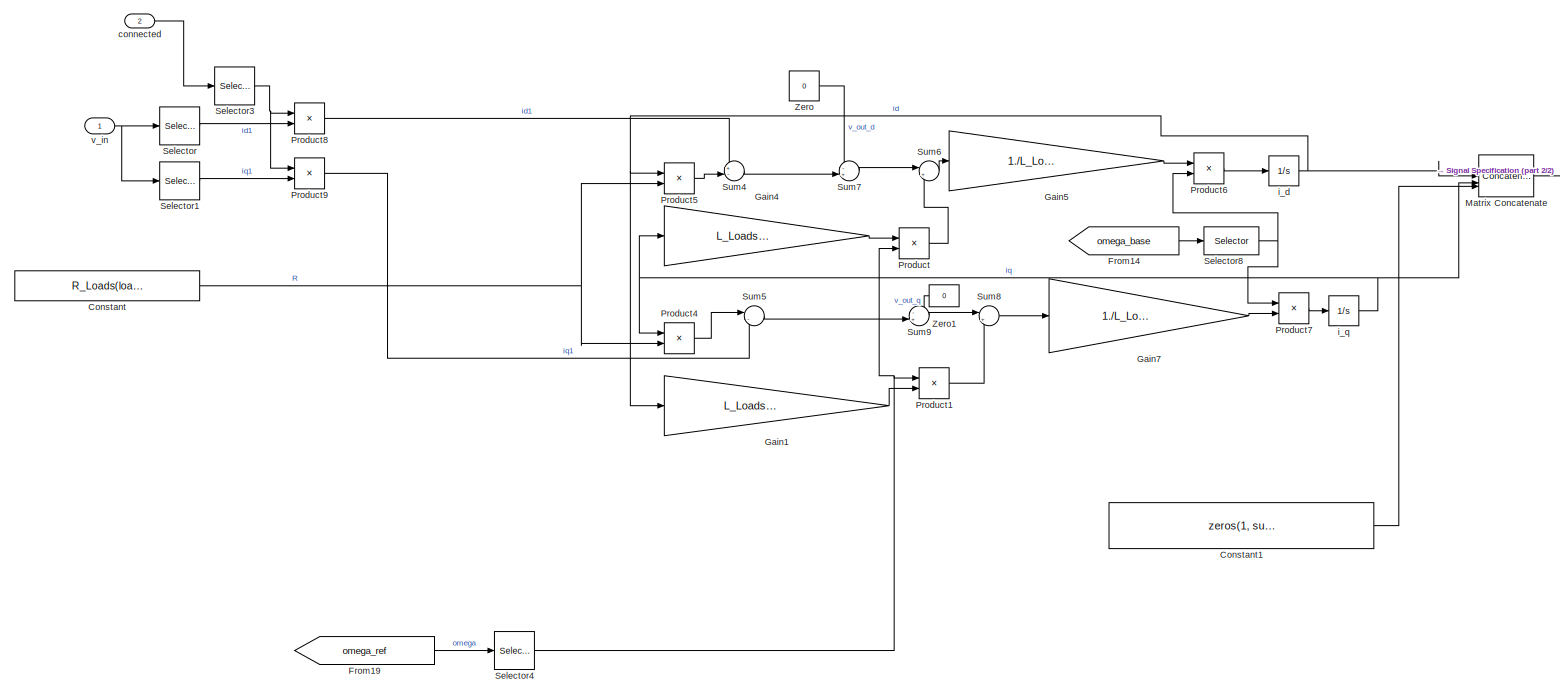
[diagram: Dynamic/Loads/parallel RL static - part 1/2, most of the canvas]
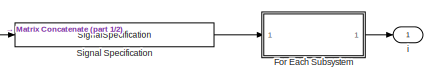
[diagram: Dynamic/Loads/parallel RL static - part 2/2, top right region]
BLOCK [SubSystem] Dynamic/Loads/parallel RL static
  Commented = on
  VariantControl = dynamic
BLOCK [SubSystem] Dynamic/Loads/parallel RL static omega
  Commented = on
  VariantControl = dynamic
BLOCK [Constant] Dynamic/Loads/parallel RL static omega/Constant
  Value = R_Loads(load_complexity == 1)
  VectorParams1D = off
BLOCK [Constant] Dynamic/Loads/parallel RL static omega/Constant1
  Value = zeros(1, sum(load_complexity == 1))
  VectorParams1D = off
BLOCK [SubSystem] Dynamic/Loads/parallel RL static omega/For Each Subsystem
  TreatAsAtomicUnit = on
BLOCK [Assignment] Dynamic/Loads/parallel RL static omega/For Each Subsystem/Assignment
  DiagnosticForDimensions = Warning
  IndexOptions = Index vector (dialog)
  Indices = find(load_complexity == 1)
  OutputSizes = 1
BLOCK [ForEach] Dynamic/Loads/parallel RL static omega/For Each Subsystem/For Each
  DisableCoverage = on
BLOCK [Inport] Dynamic/Loads/parallel RL static omega/For Each Subsystem/In1
  Partition = on
  PartitionDimension = 1
  PartitionOffset = 0
  PartitionWidth = 1
BLOCK [Outport] Dynamic/Loads/parallel RL static omega/For Each Subsystem/Out1
  ConcatenationDimension = 1
BLOCK [Constant] Dynamic/Loads/parallel RL static omega/For Each Subsystem/Zero
  OutDataTypeStr = Inherit: Inherit via back propagation
  Value = zeros(1,length(L_Loads))
  VectorParams1D = off
BLOCK [From] Dynamic/Loads/parallel RL static omega/From14
  GotoTag = omega_base
  TagVisibility = scoped
BLOCK [From] Dynamic/Loads/parallel RL static omega/From19
  GotoTag = omega_ref
  TagVisibility = scoped
BLOCK [Gain] Dynamic/Loads/parallel RL static omega/Gain1
  Gain = L_Loads(load_complexity == 1)
BLOCK [Gain] Dynamic/Loads/parallel RL static omega/Gain4
  Gain = L_Loads(load_complexity == 1)
BLOCK [Gain] Dynamic/Loads/parallel RL static omega/Gain5
  Gain = 1./L_Loads(load_complexity == 1)
BLOCK [Gain] Dynamic/Loads/parallel RL static omega/Gain7
  Gain = 1./L_Loads(load_complexity == 1)
BLOCK [Concatenate] Dynamic/Loads/parallel RL static omega/Matrix Concatenate
  Mode = Multidimensional array
  NumInputs = 3
BLOCK [Product] Dynamic/Loads/parallel RL static omega/Product
BLOCK [Product] Dynamic/Loads/parallel RL static omega/Product1
BLOCK [Product] Dynamic/Loads/parallel RL static omega/Product4
BLOCK [Product] Dynamic/Loads/parallel RL static omega/Product5
BLOCK [Product] Dynamic/Loads/parallel RL static omega/Product6
BLOCK [Product] Dynamic/Loads/parallel RL static omega/Product7
BLOCK [Product] Dynamic/Loads/parallel RL static omega/Product8
BLOCK [Product] Dynamic/Loads/parallel RL static omega/Product9
BLOCK [Selector] Dynamic/Loads/parallel RL static omega/Selector
  IndexOptions = Index vector (dialog),Index vector (dialog)
  Indices = 1,find(load_complexity == 1)
  InputPortWidth = 3
  NumberOfDimensions = 2
  OutputSizes = 1,1
BLOCK [Selector] Dynamic/Loads/parallel RL static omega/Selector1
  IndexOptions = Index vector (dialog),Index vector (dialog)
  Indices = 2,find(load_complexity == 1)
  InputPortWidth = 3
  NumberOfDimensions = 2
  OutputSizes = 1,1
BLOCK [Selector] Dynamic/Loads/parallel RL static omega/Selector3
  IndexOptions = Index vector (dialog)
  Indices = find(load_complexity == 1)
  InputPortWidth = length(R_Loads)
  OutputSizes = 1
BLOCK [Selector] Dynamic/Loads/parallel RL static omega/Selector4
  IndexOptions = Index vector (dialog)
  Indices = fref.loads(load_complexity == 1)
  InputPortWidth = length(fref.ref_units)
  OutputSizes = 1
BLOCK [Selector] Dynamic/Loads/parallel RL static omega/Selector8
  IndexOptions = Index vector (dialog)
  Indices = fref.loads(load_complexity == 1)
  InputPortWidth = length(fref.ref_units)
  OutputSizes = 1
BLOCK [SignalSpecification] Dynamic/Loads/parallel RL static omega/Signal Specification
  Dimensions = [3 sum(load_complexity == 1)]
BLOCK [Sum] Dynamic/Loads/parallel RL static omega/Sum4
  Inputs = +-|
BLOCK [Sum] Dynamic/Loads/parallel RL static omega/Sum5
  Inputs = |-+
BLOCK [Sum] Dynamic/Loads/parallel RL static omega/Sum6
  Inputs = |++
BLOCK [Sum] Dynamic/Loads/parallel RL static omega/Sum7
  Inputs = -+|
BLOCK [Sum] Dynamic/Loads/parallel RL static omega/Sum8
  Inputs = |+-
BLOCK [Sum] Dynamic/Loads/parallel RL static omega/Sum9
  Inputs = -+|
BLOCK [Constant] Dynamic/Loads/parallel RL static omega/Zero
  OutDataTypeStr = Inherit: Inherit via back propagation
  Value = 0
BLOCK [Constant] Dynamic/Loads/parallel RL static omega/Zero1
  NameLocation = top
  OutDataTypeStr = Inherit: Inherit via back propagation
  Value = 0
BLOCK [Inport] Dynamic/Loads/parallel RL static omega/connected
  Port = 2
BLOCK [Outport] Dynamic/Loads/parallel RL static omega/i
  IconDisplay = Signal name
BLOCK [Integrator] Dynamic/Loads/parallel RL static omega/i_d
  InitialCondition = Grid_lf_op.op_report.Outputs(5).y(load_complexity == 1)
BLOCK [Integrator] Dynamic/Loads/parallel RL static omega/i_q
  InitialCondition = Grid_lf_op.op_report.Outputs(6).y(load_complexity == 1)
BLOCK [Inport] Dynamic/Loads/parallel RL static omega/v_in
  IconDisplay = Signal name
BLOCK [Constant] Dynamic/Loads/parallel RL static/Constant
  Value = R_Loads(load_complexity == 1)
  VectorParams1D = off
BLOCK [Constant] Dynamic/Loads/parallel RL static/Constant1
  Value = zeros(1, sum(load_complexity == 1))
  VectorParams1D = off
BLOCK [SubSystem] Dynamic/Loads/parallel RL static/For Each Subsystem
  TreatAsAtomicUnit = on
BLOCK [Assignment] Dynamic/Loads/parallel RL static/For Each Subsystem/Assignment
  DiagnosticForDimensions = Warning
  IndexOptions = Index vector (dialog)
  Indices = find(load_complexity == 1)
  OutputSizes = 1
BLOCK [ForEach] Dynamic/Loads/parallel RL static/For Each Subsystem/For Each
  DisableCoverage = on
BLOCK [Inport] Dynamic/Loads/parallel RL static/For Each Subsystem/In1
  Partition = on
  PartitionDimension = 1
  PartitionOffset = 0
  PartitionWidth = 1
BLOCK [Outport] Dynamic/Loads/parallel RL static/For Each Subsystem/Out1
  ConcatenationDimension = 1
BLOCK [Constant] Dynamic/Loads/parallel RL static/For Each Subsystem/Zero
  OutDataTypeStr = Inherit: Inherit via back propagation
  Value = zeros(1,length(L_Loads))
  VectorParams1D = off
BLOCK [From] Dynamic/Loads/parallel RL static/From14
  GotoTag = omega_base
  TagVisibility = scoped
BLOCK [From] Dynamic/Loads/parallel RL static/From19
  GotoTag = omega_ref
  TagVisibility = scoped
BLOCK [Gain] Dynamic/Loads/parallel RL static/Gain1
  Gain = L_Loads(load_complexity == 1)
BLOCK [Gain] Dynamic/Loads/parallel RL static/Gain4
  Gain = L_Loads(load_complexity == 1)
BLOCK [Gain] Dynamic/Loads/parallel RL static/Gain5
  Gain = 1./L_Loads(load_complexity == 1)
BLOCK [Gain] Dynamic/Loads/parallel RL static/Gain7
  Gain = 1./L_Loads(load_complexity == 1)
BLOCK [Concatenate] Dynamic/Loads/parallel RL static/Matrix Concatenate
  Mode = Multidimensional array
  NumInputs = 3
BLOCK [Product] Dynamic/Loads/parallel RL static/Product
BLOCK [Product] Dynamic/Loads/parallel RL static/Product1
BLOCK [Product] Dynamic/Loads/parallel RL static/Product4
BLOCK [Product] Dynamic/Loads/parallel RL static/Product5
BLOCK [Product] Dynamic/Loads/parallel RL static/Product6
BLOCK [Product] Dynamic/Loads/parallel RL static/Product7
BLOCK [Product] Dynamic/Loads/parallel RL static/Product8
BLOCK [Product] Dynamic/Loads/parallel RL static/Product9
BLOCK [Selector] Dynamic/Loads/parallel RL static/Selector
  IndexOptions = Index vector (dialog),Index vector (dialog)
  Indices = 1,find(load_complexity == 1)
  InputPortWidth = 3
  NumberOfDimensions = 2
  OutputSizes = 1,1
BLOCK [Selector] Dynamic/Loads/parallel RL static/Selector1
  IndexOptions = Index vector (dialog),Index vector (dialog)
  Indices = 2,find(load_complexity == 1)
  InputPortWidth = 3
  NumberOfDimensions = 2
  OutputSizes = 1,1
BLOCK [Selector] Dynamic/Loads/parallel RL static/Selector3
  IndexOptions = Index vector (dialog)
  Indices = find(load_complexity == 1)
  InputPortWidth = length(R_Loads)
  OutputSizes = 1
BLOCK [Selector] Dynamic/Loads/parallel RL static/Selector4
  IndexOptions = Index vector (dialog)
  Indices = fref.loads(load_complexity == 1)
  InputPortWidth = length(fref.ref_units)
  OutputSizes = 1
BLOCK [Selector] Dynamic/Loads/parallel RL static/Selector8
  IndexOptions = Index vector (dialog)
  Indices = fref.loads(load_complexity == 1)
  InputPortWidth = length(fref.ref_units)
  OutputSizes = 1
BLOCK [SignalSpecification] Dynamic/Loads/parallel RL static/Signal Specification
  Dimensions = [3 sum(load_complexity == 1)]
BLOCK [Sum] Dynamic/Loads/parallel RL static/Sum4
  Inputs = +-|
BLOCK [Sum] Dynamic/Loads/parallel RL static/Sum5
  Inputs = |-+
BLOCK [Sum] Dynamic/Loads/parallel RL static/Sum6
  Inputs = |++
BLOCK [Sum] Dynamic/Loads/parallel RL static/Sum7
  Inputs = -+|
BLOCK [Sum] Dynamic/Loads/parallel RL static/Sum8
  Inputs = |+-
BLOCK [Sum] Dynamic/Loads/parallel RL static/Sum9
  Inputs = -+|
BLOCK [Constant] Dynamic/Loads/parallel RL static/Zero
  OutDataTypeStr = Inherit: Inherit via back propagation
  Value = 0
BLOCK [Constant] Dynamic/Loads/parallel RL static/Zero1
  NameLocation = top
  OutDataTypeStr = Inherit: Inherit via back propagation
  Value = 0
BLOCK [Inport] Dynamic/Loads/parallel RL static/connected
  Port = 2
BLOCK [Outport] Dynamic/Loads/parallel RL static/i
  IconDisplay = Signal name
BLOCK [Integrator] Dynamic/Loads/parallel RL static/i_d
  InitialCondition = Grid_lf_op.op_report.Outputs(5).y(load_complexity == 1)
BLOCK [Integrator] Dynamic/Loads/parallel RL static/i_q
  InitialCondition = Grid_lf_op.op_report.Outputs(6).y(load_complexity == 1)
BLOCK [Inport] Dynamic/Loads/parallel RL static/v_in
  IconDisplay = Signal name
BLOCK [SubSystem] Dynamic/Loads/series RL dynamic
  Commented = on
  VariantControl = dynamic
BLOCK [Constant] Dynamic/Loads/series RL dynamic/Constant
  Value = R_Loads(load_complexity == 1)
  VectorParams1D = off
BLOCK [Constant] Dynamic/Loads/series RL dynamic/Constant1
  Value = zeros(1, sum(load_complexity == 1))
  VectorParams1D = off
BLOCK [SubSystem] Dynamic/Loads/series RL dynamic/For Each Subsystem
  TreatAsAtomicUnit = on
BLOCK [Assignment] Dynamic/Loads/series RL dynamic/For Each Subsystem/Assignment
  DiagnosticForDimensions = Warning
  IndexOptions = Index vector (dialog)
  Indices = find(load_complexity == 1)
  OutputSizes = 1
BLOCK [ForEach] Dynamic/Loads/series RL dynamic/For Each Subsystem/For Each
  DisableCoverage = on
BLOCK [Inport] Dynamic/Loads/series RL dynamic/For Each Subsystem/In1
  Partition = on
  PartitionDimension = 1
  PartitionOffset = 0
  PartitionWidth = 1
BLOCK [Outport] Dynamic/Loads/series RL dynamic/For Each Subsystem/Out1
  ConcatenationDimension = 1
BLOCK [Constant] Dynamic/Loads/series RL dynamic/For Each Subsystem/Zero
  OutDataTypeStr = Inherit: Inherit via back propagation
  Value = zeros(1,length(L_Loads))
  VectorParams1D = off
BLOCK [From] Dynamic/Loads/series RL dynamic/From14
  GotoTag = omega_base
  TagVisibility = scoped
BLOCK [From] Dynamic/Loads/series RL dynamic/From19
  GotoTag = omega_ref
  TagVisibility = scoped
BLOCK [Gain] Dynamic/Loads/series RL dynamic/Gain1
  Gain = L_Loads(load_complexity == 1)
BLOCK [Gain] Dynamic/Loads/series RL dynamic/Gain4
  Gain = L_Loads(load_complexity == 1)
BLOCK [Gain] Dynamic/Loads/series RL dynamic/Gain5
  Gain = 1./L_Loads(load_complexity == 1)
BLOCK [Gain] Dynamic/Loads/series RL dynamic/Gain7
  Gain = 1./L_Loads(load_complexity == 1)
BLOCK [Concatenate] Dynamic/Loads/series RL dynamic/Matrix Concatenate
  Mode = Multidimensional array
  NumInputs = 3
BLOCK [Product] Dynamic/Loads/series RL dynamic/Product
BLOCK [Product] Dynamic/Loads/series RL dynamic/Product1
BLOCK [Product] Dynamic/Loads/series RL dynamic/Product4
BLOCK [Product] Dynamic/Loads/series RL dynamic/Product5
BLOCK [Product] Dynamic/Loads/series RL dynamic/Product6
BLOCK [Product] Dynamic/Loads/series RL dynamic/Product7
BLOCK [Product] Dynamic/Loads/series RL dynamic/Product8
BLOCK [Product] Dynamic/Loads/series RL dynamic/Product9
BLOCK [Selector] Dynamic/Loads/series RL dynamic/Selector
  IndexOptions = Index vector (dialog),Index vector (dialog)
  Indices = 1,find(load_complexity == 1)
  InputPortWidth = 3
  NumberOfDimensions = 2
  OutputSizes = 1,1
BLOCK [Selector] Dynamic/Loads/series RL dynamic/Selector1
  IndexOptions = Index vector (dialog),Index vector (dialog)
  Indices = 2,find(load_complexity == 1)
  InputPortWidth = 3
  NumberOfDimensions = 2
  OutputSizes = 1,1
BLOCK [Selector] Dynamic/Loads/series RL dynamic/Selector3
  IndexOptions = Index vector (dialog)
  Indices = find(load_complexity == 1)
  InputPortWidth = length(R_Loads)
  OutputSizes = 1
BLOCK [Selector] Dynamic/Loads/series RL dynamic/Selector4
  IndexOptions = Index vector (dialog)
  Indices = fref.loads(load_complexity == 1)
  InputPortWidth = length(fref.ref_units)
  OutputSizes = 1
BLOCK [Selector] Dynamic/Loads/series RL dynamic/Selector8
  IndexOptions = Index vector (dialog)
  Indices = fref.loads(load_complexity == 1)
  InputPortWidth = length(fref.ref_units)
  OutputSizes = 1
BLOCK [SignalSpecification] Dynamic/Loads/series RL dynamic/Signal Specification
  Dimensions = [3 sum(load_complexity == 1)]
BLOCK [Sum] Dynamic/Loads/series RL dynamic/Sum4
  Inputs = +-|
BLOCK [Sum] Dynamic/Loads/series RL dynamic/Sum5
  Inputs = |-+
BLOCK [Sum] Dynamic/Loads/series RL dynamic/Sum6
  Inputs = |++
BLOCK [Sum] Dynamic/Loads/series RL dynamic/Sum7
  Inputs = -+|
BLOCK [Sum] Dynamic/Loads/series RL dynamic/Sum8
  Inputs = |+-
BLOCK [Sum] Dynamic/Loads/series RL dynamic/Sum9
  Inputs = -+|
BLOCK [Constant] Dynamic/Loads/series RL dynamic/Zero
  OutDataTypeStr = Inherit: Inherit via back propagation
  Value = 0
BLOCK [Constant] Dynamic/Loads/series RL dynamic/Zero1
  NameLocation = top
  OutDataTypeStr = Inherit: Inherit via back propagation
  Value = 0
BLOCK [Inport] Dynamic/Loads/series RL dynamic/connected
  Port = 2
BLOCK [Outport] Dynamic/Loads/series RL dynamic/i
  IconDisplay = Signal name
BLOCK [Integrator] Dynamic/Loads/series RL dynamic/i_d
  InitialCondition = Grid_lf_op.op_report.Outputs(5).y(load_complexity == 1)
BLOCK [Integrator] Dynamic/Loads/series RL dynamic/i_q
  InitialCondition = Grid_lf_op.op_report.Outputs(6).y(load_complexity == 1)
BLOCK [Inport] Dynamic/Loads/series RL dynamic/v_in
  IconDisplay = Signal name
BLOCK [SubSystem] Dynamic/Loads/series RL static
  Commented = on
  VariantControl = static
BLOCK [SubSystem] Dynamic/Loads/series RL static omega
  VariantControl = static_omega
BLOCK [Constant] Dynamic/Loads/series RL static omega/Constant1
  Value = zeros(1, sum(load_complexity == 3))
  VectorParams1D = off
BLOCK [SubSystem] Dynamic/Loads/series RL static omega/For Each Subsystem
  TreatAsAtomicUnit = on
BLOCK [Assignment] Dynamic/Loads/series RL static omega/For Each Subsystem/Assignment
  DiagnosticForDimensions = Warning
  IndexOptions = Index vector (dialog)
  Indices = find(load_complexity == 3)
  OutputSizes = 1
BLOCK [ForEach] Dynamic/Loads/series RL static omega/For Each Subsystem/For Each
  DisableCoverage = on
BLOCK [Inport] Dynamic/Loads/series RL static omega/For Each Subsystem/In1
  Partition = on
  PartitionDimension = 1
  PartitionOffset = 0
  PartitionWidth = 1
BLOCK [Outport] Dynamic/Loads/series RL static omega/For Each Subsystem/Out1
  ConcatenationDimension = 1
BLOCK [Constant] Dynamic/Loads/series RL static omega/For Each Subsystem/Zero
  OutDataTypeStr = Inherit: Inherit via back propagation
  Value = zeros(1,length(L_Loads))
  VectorParams1D = off
BLOCK [Gain] Dynamic/Loads/series RL static omega/Gain
  Gain = 1./(R_Loads(load_complexity == 3).^2+L_Loads(load_complexity == 3).^2)
BLOCK [Gain] Dynamic/Loads/series RL static omega/Gain2
  Gain = 1./(R_Loads(load_complexity == 3).^2+L_Loads(load_complexity == 3).^2)
BLOCK [Gain] Dynamic/Loads/series RL static omega/Gain3
  Gain = R_Loads(load_complexity == 3)
BLOCK [Gain] Dynamic/Loads/series RL static omega/Gain4
  Gain = L_Loads(load_complexity == 3)
BLOCK [Gain] Dynamic/Loads/series RL static omega/Gain5
  Gain = L_Loads(load_complexity == 3)
BLOCK [Gain] Dynamic/Loads/series RL static omega/Gain6
  Gain = R_Loads(load_complexity == 3)
BLOCK [Concatenate] Dynamic/Loads/series RL static omega/Matrix Concatenate
  Mode = Multidimensional array
  NumInputs = 3
BLOCK [Product] Dynamic/Loads/series RL static omega/Product2
BLOCK [Product] Dynamic/Loads/series RL static omega/Product3
BLOCK [Selector] Dynamic/Loads/series RL static omega/Selector
  IndexOptions = Index vector (dialog),Index vector (dialog)
  Indices = 1,find(load_complexity == 3)
  InputPortWidth = 3
  NumberOfDimensions = 2
  OutputSizes = 1,1
BLOCK [Selector] Dynamic/Loads/series RL static omega/Selector1
  IndexOptions = Index vector (dialog),Index vector (dialog)
  Indices = 2,find(load_complexity == 3)
  InputPortWidth = 3
  NumberOfDimensions = 2
  OutputSizes = 1,1
BLOCK [Selector] Dynamic/Loads/series RL static omega/Selector2
  IndexOptions = Index vector (dialog)
  Indices = find(load_complexity == 3)
  InputPortWidth = length(R_Loads)
  OutputSizes = 1
BLOCK [Sum] Dynamic/Loads/series RL static omega/Sum
  Inputs = |++
BLOCK [Sum] Dynamic/Loads/series RL static omega/Sum3
  Inputs = |-+
BLOCK [Inport] Dynamic/Loads/series RL static omega/connected
  Port = 2
BLOCK [Outport] Dynamic/Loads/series RL static omega/i
BLOCK [Inport] Dynamic/Loads/series RL static omega/v_in
  IconDisplay = Signal name
BLOCK [Constant] Dynamic/Loads/series RL static/Constant
  Value = R_Loads(load_complexity == 2)
  VectorParams1D = off
BLOCK [Constant] Dynamic/Loads/series RL static/Constant1
BLOCK [Constant] Dynamic/Loads/series RL static/Constant2
  Value = zeros(1, sum(load_complexity == 2))
  VectorParams1D = off
BLOCK [Product] Dynamic/Loads/series RL static/Divide
  Inputs = */
BLOCK [SubSystem] Dynamic/Loads/series RL static/For Each Subsystem
  TreatAsAtomicUnit = on
BLOCK [Assignment] Dynamic/Loads/series RL static/For Each Subsystem/Assignment
  DiagnosticForDimensions = Warning
  IndexOptions = Index vector (dialog)
  Indices = find(load_complexity == 2)
  OutputSizes = 1
BLOCK [ForEach] Dynamic/Loads/series RL static/For Each Subsystem/For Each
  DisableCoverage = on
BLOCK [Inport] Dynamic/Loads/series RL static/For Each Subsystem/In1
  Partition = on
  PartitionDimension = 1
  PartitionOffset = 0
  PartitionWidth = 1
BLOCK [Outport] Dynamic/Loads/series RL static/For Each Subsystem/Out1
  ConcatenationDimension = 1
BLOCK [Constant] Dynamic/Loads/series RL static/For Each Subsystem/Zero
  OutDataTypeStr = Inherit: Inherit via back propagation
  Value = zeros(1,length(L_Loads))
  VectorParams1D = off
BLOCK [From] Dynamic/Loads/series RL static/From
  GotoTag = omega_ref
  TagVisibility = scoped
BLOCK [Gain] Dynamic/Loads/series RL static/Gain
  Gain = L_Loads(load_complexity == 2)
BLOCK [Gain] Dynamic/Loads/series RL static/Gain1
  Gain = R_Loads(load_complexity == 2)
BLOCK [Gain] Dynamic/Loads/series RL static/Gain2
  Gain = R_Loads(load_complexity == 2)
BLOCK [Concatenate] Dynamic/Loads/series RL static/Matrix Concatenate
  Mode = Multidimensional array
  NumInputs = 3
BLOCK [Product] Dynamic/Loads/series RL static/Product
BLOCK [Product] Dynamic/Loads/series RL static/Product1
BLOCK [Product] Dynamic/Loads/series RL static/Product2
BLOCK [Product] Dynamic/Loads/series RL static/Product3
BLOCK [Product] Dynamic/Loads/series RL static/Product4
BLOCK [Product] Dynamic/Loads/series RL static/Product5
BLOCK [Product] Dynamic/Loads/series RL static/Product6
BLOCK [Product] Dynamic/Loads/series RL static/Product7
BLOCK [Selector] Dynamic/Loads/series RL static/Selector
  IndexOptions = Index vector (dialog),Index vector (dialog)
  Indices = 1,find(load_complexity == 2)
  InputPortWidth = 3
  NumberOfDimensions = 2
  OutputSizes = 1,1
BLOCK [Selector] Dynamic/Loads/series RL static/Selector1
  IndexOptions = Index vector (dialog),Index vector (dialog)
  Indices = 2,find(load_complexity == 2)
  InputPortWidth = 3
  NumberOfDimensions = 2
  OutputSizes = 1,1
BLOCK [Selector] Dynamic/Loads/series RL static/Selector2
  IndexOptions = Index vector (dialog)
  Indices = find(load_complexity == 2)
  InputPortWidth = length(R_Loads)
  OutputSizes = 1
BLOCK [Selector] Dynamic/Loads/series RL static/Selector4
  IndexOptions = Index vector (dialog)
  Indices = fref.loads(load_complexity == 2)
  InputPortWidth = length(fref.ref_units)
  OutputSizes = 1
BLOCK [Sum] Dynamic/Loads/series RL static/Sum
  Inputs = |++
BLOCK [Sum] Dynamic/Loads/series RL static/Sum1
  Inputs = |+-
BLOCK [Sum] Dynamic/Loads/series RL static/Sum2
  Inputs = |+-
BLOCK [Sum] Dynamic/Loads/series RL static/Sum3
  Inputs = |++
BLOCK [Sum] Dynamic/Loads/series RL static/Sum4
  Inputs = |-+
BLOCK [Constant] Dynamic/Loads/series RL static/Zero
  OutDataTypeStr = Inherit: Inherit via back propagation
  Value = 0
BLOCK [Constant] Dynamic/Loads/series RL static/Zero1
  OutDataTypeStr = Inherit: Inherit via back propagation
  Value = 0
BLOCK [Inport] Dynamic/Loads/series RL static/connected
BLOCK [Outport] Dynamic/Loads/series RL static/i
BLOCK [Inport] Dynamic/Loads/series RL static/v_in
  IconDisplay = Signal name
  Port = 2
BLOCK [Inport] Dynamic/Loads/v_in
BLOCK [Selector] Dynamic/Selector2
  IndexOptions = Select all,Index vector (dialog)
  Indices = 1,Load_buses
  InputPortWidth = Nnodes
  NumberOfDimensions = 2
  OutputSizes = 1,1
BLOCK [Selector] Dynamic/Selector4
  IndexOptions = Select all,Index vector (dialog)
  Indices = From_nodes,From_buses
  InputPortWidth = Nnodes
  NumberOfDimensions = 2
  OutputSizes = 1,1
BLOCK [Selector] Dynamic/Selector6
  IndexOptions = Select all,Index vector (dialog)
  Indices = To_nodes,To_buses
  InputPortWidth = Nnodes
  NumberOfDimensions = 2
  OutputSizes = 1,1
BLOCK [Step] Dynamic/Step
  After = [1 ones(1, length(From_buses)-1)]
  Before = ones(1, length(From_buses))
  SampleTime = 0
BLOCK [Sum] Dynamic/Sum
  Inputs = ++|
BLOCK [Sum] Dynamic/Sum1
  Inputs = |++
BLOCK [SubSystem] Dynamic/connect
BLOCK [Assignment] Dynamic/connect/Assignment
  DiagnosticForDimensions = Warning
  IndexOptions = Index vector (dialog)
  Indices = 1
  OutputSizes = 1
BLOCK [Constant] Dynamic/connect/One3
  OutDataTypeStr = Inherit: Inherit via back propagation
  Value = ones(1, length(L_Loads))
  VectorParams1D = off
BLOCK [Outport] Dynamic/connect/Out1
BLOCK [Step] Dynamic/connect/Step
  Before = 1
  SampleTime = 0
BLOCK [SubSystem] Dynamic/iCbuses
BLOCK [Constant] Dynamic/iCbuses/Constant
  Value = Cbuses
  VectorParams1D = off
BLOCK [Constant] Dynamic/iCbuses/Constant1
  Value = C_Lines
  VectorParams1D = off
BLOCK [Gain] Dynamic/iCbuses/Gain
  Gain = 1/2
BLOCK [Inport] Dynamic/iCbuses/In1
BLOCK [Outport] Dynamic/iCbuses/Out1
BLOCK [Saturate] Dynamic/iCbuses/Saturation
  LowerLimit = 1e-3
  UpperLimit = inf
BLOCK [SubSystem] Dynamic/iCbuses/Subsystem
BLOCK [Inport] Dynamic/iCbuses/Subsystem/In1
BLOCK [Outport] Dynamic/iCbuses/Subsystem/Out1
BLOCK [StateSpace] Dynamic/iCbuses/Subsystem/State-Space
  A = []
  B = []
  C = []
  D = Lines_toM
  InitialCondition = 0
  ParameterTunability = Optimized
BLOCK [StateSpace] Dynamic/iCbuses/Subsystem/State-Space1
  A = []
  B = []
  C = []
  D = Lines_fromM
  InitialCondition = 0
  ParameterTunability = Optimized
BLOCK [Sum] Dynamic/iCbuses/Subsystem/Sum
  Inputs = |++
BLOCK [Math] Dynamic/iCbuses/Subsystem/Transpose
  Operator = transpose
BLOCK [Math] Dynamic/iCbuses/Subsystem/Transpose1
  Operator = transpose
BLOCK [Math] Dynamic/iCbuses/Subsystem/Transpose2
  Operator = transpose
BLOCK [Sum] Dynamic/iCbuses/Sum3
  Inputs = |-+
BLOCK [Switch] Dynamic/iCbuses/Switch
  Criteria = u2 > Threshold
  InputSameDT = off
  SaturateOnIntegerOverflow = off
BLOCK [Constant] Dynamic/iCbuses/Zero
  OutDataTypeStr = Inherit: Inherit via back propagation
  Value = zeros(1, length(From_buses))
  VectorParams1D = off
BLOCK [SubSystem] Dynamic/iP
BLOCK [Assignment] Dynamic/iP/Assignment
  DiagnosticForDimensions = Warning
  IndexOptions = Index vector (dialog)
  Indices = find(Ploads == max(Ploads), 1)
  OutputSizes = 1
BLOCK [Gain] Dynamic/iP/Gain
  Gain = 0
BLOCK [Constant] Dynamic/iP/One3
  OutDataTypeStr = Inherit: Inherit via back propagation
  Value = zeros(1, length(L_Loads))
  VectorParams1D = off
BLOCK [Outport] Dynamic/iP/Out1
BLOCK [Step] Dynamic/iP/iP in %
  After = 0.1
  SampleTime = 0
  VectorParams1D = off
  ZeroCross = off
BLOCK [Inport] Dynamic/i_from_gen
BLOCK [Outport] Dynamic/v_buses
ANNOTATION Dynamic/Lines: tap transformer
ANNOTATION Dynamic/connect: in which load? By default, the max(P)
ANNOTATION Dynamic/iP: in which load? By default, the max(P)
LINE Dynamic/Buses/Sum:1 -> Dynamic/Buses/v:1
LINE Dynamic/Buses/dynamic/Constant:1 -> Dynamic/Buses/dynamic/Matrix Concatenate:3
LINE Dynamic/Buses/dynamic/Divide1:1 -> Dynamic/Buses/dynamic/Product3:2
LINE Dynamic/Buses/dynamic/Divide:1 -> Dynamic/Buses/dynamic/Product2:1
LINE Dynamic/Buses/dynamic/For Each Subsystem/Assignment:1 -> Dynamic/Buses/dynamic/For Each Subsystem/Out1:1
LINE Dynamic/Buses/dynamic/For Each Subsystem/In1:1 -> Dynamic/Buses/dynamic/For Each Subsystem/Assignment:2
LINE Dynamic/Buses/dynamic/For Each Subsystem/Zero:1 -> Dynamic/Buses/dynamic/For Each Subsystem/Assignment:1
LINE Dynamic/Buses/dynamic/For Each Subsystem:1 -> Dynamic/Buses/dynamic/v:1
LINE Dynamic/Buses/dynamic/From14:1 -> Dynamic/Buses/dynamic/Selector8:1
LINE Dynamic/Buses/dynamic/From1:1 -> Dynamic/Buses/dynamic/Selector5:1
LINE Dynamic/Buses/dynamic/From2:1 -> Dynamic/Buses/dynamic/Product:3
LINE Dynamic/Buses/dynamic/From3:1 -> Dynamic/Buses/dynamic/Product1:3
LINE Dynamic/Buses/dynamic/From4:1 -> Dynamic/Buses/dynamic/Divide:2
LINE Dynamic/Buses/dynamic/From5:1 -> Dynamic/Buses/dynamic/Divide1:2
LINE Dynamic/Buses/dynamic/From:1 -> Dynamic/Buses/dynamic/Selector4:1
LINE Dynamic/Buses/dynamic/Gain1:1 -> Dynamic/Buses/dynamic/Sum10:1
LINE Dynamic/Buses/dynamic/Gain2:1 -> Dynamic/Buses/dynamic/Sum13:3
LINE Dynamic/Buses/dynamic/Matrix Concatenate:1 -> Dynamic/Buses/dynamic/Signal Specification:1
LINE Dynamic/Buses/dynamic/Product1:1 -> Dynamic/Buses/dynamic/Sum10:3
LINE Dynamic/Buses/dynamic/Product2:1 -> Dynamic/Buses/dynamic/vd:1
LINE Dynamic/Buses/dynamic/Product3:1 -> Dynamic/Buses/dynamic/vq:1
LINE Dynamic/Buses/dynamic/Product:1 -> Dynamic/Buses/dynamic/Sum13:1
LINE Dynamic/Buses/dynamic/Selector1:1 -> Dynamic/Buses/dynamic/Sum12:1
LINE Dynamic/Buses/dynamic/Selector2:1 -> Dynamic/Buses/dynamic/Sum11:1
LINE Dynamic/Buses/dynamic/Selector3:1 -> Dynamic/Buses/dynamic/Sum12:2
NET Dynamic/Buses/dynamic/Selector4:1 -> Dynamic/Buses/dynamic/Product1:2, Dynamic/Buses/dynamic/Product:2
LINE Dynamic/Buses/dynamic/Selector5:1 -> Dynamic/Buses/dynamic/Goto:1
NET Dynamic/Buses/dynamic/Selector8:1 -> Dynamic/Buses/dynamic/Product2:2, Dynamic/Buses/dynamic/Product3:1
LINE Dynamic/Buses/dynamic/Selector:1 -> Dynamic/Buses/dynamic/Sum11:2
LINE Dynamic/Buses/dynamic/Signal Specification:1 -> Dynamic/Buses/dynamic/For Each Subsystem:1
LINE Dynamic/Buses/dynamic/Sum10:1 -> Dynamic/Buses/dynamic/Divide:1
LINE Dynamic/Buses/dynamic/Sum11:1 -> Dynamic/Buses/dynamic/Sum10:2
LINE Dynamic/Buses/dynamic/Sum12:1 -> Dynamic/Buses/dynamic/Sum13:2
LINE Dynamic/Buses/dynamic/Sum13:1 -> Dynamic/Buses/dynamic/Divide1:1
NET Dynamic/Buses/dynamic/i_in:1 -> Dynamic/Buses/dynamic/Selector1:1, Dynamic/Buses/dynamic/Selector:1
NET Dynamic/Buses/dynamic/i_out:1 -> Dynamic/Buses/dynamic/Selector2:1, Dynamic/Buses/dynamic/Selector3:1
NET Dynamic/Buses/dynamic/vd:1 -> Dynamic/Buses/dynamic/Gain1:1, Dynamic/Buses/dynamic/Matrix Concatenate:1, Dynamic/Buses/dynamic/Product:1
NET Dynamic/Buses/dynamic/vq:1 -> Dynamic/Buses/dynamic/Gain2:1, Dynamic/Buses/dynamic/Matrix Concatenate:2, Dynamic/Buses/dynamic/Product1:1
LINE Dynamic/Buses/dynamic:1 -> Dynamic/Buses/Sum:1
NET Dynamic/Buses/i_in:1 -> Dynamic/Buses/dynamic:1, Dynamic/Buses/only R:1, Dynamic/Buses/static omega:1, Dynamic/Buses/static:1
NET Dynamic/Buses/i_out:1 -> Dynamic/Buses/dynamic:2, Dynamic/Buses/only R:2, Dynamic/Buses/static omega:2, Dynamic/Buses/static:2
LINE Dynamic/Buses/only R/Constant:1 -> Dynamic/Buses/only R/Matrix Concatenate:3
LINE Dynamic/Buses/only R/For Each Subsystem/Assignment:1 -> Dynamic/Buses/only R/For Each Subsystem/Out1:1
LINE Dynamic/Buses/only R/For Each Subsystem/In1:1 -> Dynamic/Buses/only R/For Each Subsystem/Assignment:2
LINE Dynamic/Buses/only R/For Each Subsystem/Zero:1 -> Dynamic/Buses/only R/For Each Subsystem/Assignment:1
LINE Dynamic/Buses/only R/For Each Subsystem:1 -> Dynamic/Buses/only R/v:1
LINE Dynamic/Buses/only R/Gain2:1 -> Dynamic/Buses/only R/Matrix Concatenate:2
LINE Dynamic/Buses/only R/Gain:1 -> Dynamic/Buses/only R/Matrix Concatenate:1
LINE Dynamic/Buses/only R/Matrix Concatenate:1 -> Dynamic/Buses/only R/For Each Subsystem:1
LINE Dynamic/Buses/only R/Selector1:1 -> Dynamic/Buses/only R/Sum2:1
LINE Dynamic/Buses/only R/Selector2:1 -> Dynamic/Buses/only R/Sum1:2
LINE Dynamic/Buses/only R/Selector3:1 -> Dynamic/Buses/only R/Sum2:2
LINE Dynamic/Buses/only R/Selector:1 -> Dynamic/Buses/only R/Sum1:1
LINE Dynamic/Buses/only R/Sum1:1 -> Dynamic/Buses/only R/Gain:1
LINE Dynamic/Buses/only R/Sum2:1 -> Dynamic/Buses/only R/Gain2:1
NET Dynamic/Buses/only R/i_in:1 -> Dynamic/Buses/only R/Selector1:1, Dynamic/Buses/only R/Selector:1
NET Dynamic/Buses/only R/i_out:1 -> Dynamic/Buses/only R/Selector2:1, Dynamic/Buses/only R/Selector3:1
LINE Dynamic/Buses/only R:1 -> Dynamic/Buses/Sum:4
LINE Dynamic/Buses/static omega/Constant:1 -> Dynamic/Buses/static omega/Matrix Concatenate:3
LINE Dynamic/Buses/static omega/For Each Subsystem/Assignment:1 -> Dynamic/Buses/static omega/For Each Subsystem/Out1:1
LINE Dynamic/Buses/static omega/For Each Subsystem/In1:1 -> Dynamic/Buses/static omega/For Each Subsystem/Assignment:2
LINE Dynamic/Buses/static omega/For Each Subsystem/Zero:1 -> Dynamic/Buses/static omega/For Each Subsystem/Assignment:1
LINE Dynamic/Buses/static omega/For Each Subsystem:1 -> Dynamic/Buses/static omega/v:1
LINE Dynamic/Buses/static omega/From1:1 -> Dynamic/Buses/static omega/Selector5:1
LINE Dynamic/Buses/static omega/From2:1 -> Dynamic/Buses/static omega/Product1:2
LINE Dynamic/Buses/static omega/From:1 -> Dynamic/Buses/static omega/Product:2
NET Dynamic/Buses/static omega/Gain1:1 -> Dynamic/Buses/static omega/Gain5:1, Dynamic/Buses/static omega/Product1:1
LINE Dynamic/Buses/static omega/Gain3:1 -> Dynamic/Buses/static omega/Sum:1
LINE Dynamic/Buses/static omega/Gain5:1 -> Dynamic/Buses/static omega/Sum4:2
NET Dynamic/Buses/static omega/Gain:1 -> Dynamic/Buses/static omega/Gain3:1, Dynamic/Buses/static omega/Product:1
LINE Dynamic/Buses/static omega/IC:1 -> Dynamic/Buses/static omega/For Each Subsystem:1
LINE Dynamic/Buses/static omega/LPF/Gain:1 -> Dynamic/Buses/static omega/LPF/I:1
NET Dynamic/Buses/static omega/LPF/I:1 -> Dynamic/Buses/static omega/LPF/Sum4:2, Dynamic/Buses/static omega/LPF/out:1
LINE Dynamic/Buses/static omega/LPF/Sum4:1 -> Dynamic/Buses/static omega/LPF/Gain:1
LINE Dynamic/Buses/static omega/LPF/in:1 -> Dynamic/Buses/static omega/LPF/Sum4:1
LINE Dynamic/Buses/static omega/LPF:1 -> Dynamic/Buses/static omega/IC:1
LINE Dynamic/Buses/static omega/Matrix Concatenate:1 -> Dynamic/Buses/static omega/LPF:1
LINE Dynamic/Buses/static omega/Product1:1 -> Dynamic/Buses/static omega/Sum:2
LINE Dynamic/Buses/static omega/Product:1 -> Dynamic/Buses/static omega/Sum4:1
LINE Dynamic/Buses/static omega/Selector1:1 -> Dynamic/Buses/static omega/Sum2:1
LINE Dynamic/Buses/static omega/Selector2:1 -> Dynamic/Buses/static omega/Sum1:2
LINE Dynamic/Buses/static omega/Selector3:1 -> Dynamic/Buses/static omega/Sum2:2
LINE Dynamic/Buses/static omega/Selector5:1 -> Dynamic/Buses/static omega/Goto:1
LINE Dynamic/Buses/static omega/Selector:1 -> Dynamic/Buses/static omega/Sum1:1
LINE Dynamic/Buses/static omega/Sum1:1 -> Dynamic/Buses/static omega/Gain:1
LINE Dynamic/Buses/static omega/Sum2:1 -> Dynamic/Buses/static omega/Gain1:1
LINE Dynamic/Buses/static omega/Sum4:1 -> Dynamic/Buses/static omega/Matrix Concatenate:2
LINE Dynamic/Buses/static omega/Sum:1 -> Dynamic/Buses/static omega/Matrix Concatenate:1
NET Dynamic/Buses/static omega/i_in:1 -> Dynamic/Buses/static omega/Selector1:1, Dynamic/Buses/static omega/Selector:1
NET Dynamic/Buses/static omega/i_out:1 -> Dynamic/Buses/static omega/Selector2:1, Dynamic/Buses/static omega/Selector3:1
LINE Dynamic/Buses/static omega:1 -> Dynamic/Buses/Sum:3
LINE Dynamic/Buses/static/Constant1:1 -> Dynamic/Buses/static/Divide:1
LINE Dynamic/Buses/static/Constant2:1 -> Dynamic/Buses/static/Matrix Concatenate:3
LINE Dynamic/Buses/static/Constant:1 -> Dynamic/Buses/static/Sum:1
NET Dynamic/Buses/static/Divide:1 -> Dynamic/Buses/static/Gain1:1, Dynamic/Buses/static/Product2:1, Dynamic/Buses/static/Product5:1
LINE Dynamic/Buses/static/For Each Subsystem/Assignment:1 -> Dynamic/Buses/static/For Each Subsystem/Out1:1
LINE Dynamic/Buses/static/For Each Subsystem/In1:1 -> Dynamic/Buses/static/For Each Subsystem/Assignment:2
LINE Dynamic/Buses/static/For Each Subsystem/Zero:1 -> Dynamic/Buses/static/For Each Subsystem/Assignment:1
LINE Dynamic/Buses/static/For Each Subsystem:1 -> Dynamic/Buses/static/v:1
LINE Dynamic/Buses/static/From1:1 -> Dynamic/Buses/static/Selector5:1
LINE Dynamic/Buses/static/From2:1 -> Dynamic/Buses/static/Product6:1
LINE Dynamic/Buses/static/From:1 -> Dynamic/Buses/static/Selector4:1
LINE Dynamic/Buses/static/Gain1:1 -> Dynamic/Buses/static/Product1:2
LINE Dynamic/Buses/static/Gain2:1 -> Dynamic/Buses/static/Product5:2
LINE Dynamic/Buses/static/Matrix Concatenate:1 -> Dynamic/Buses/static/For Each Subsystem:1
LINE Dynamic/Buses/static/Product1:1 -> Dynamic/Buses/static/Sum3:1
NET Dynamic/Buses/static/Product2:1 -> Dynamic/Buses/static/Product3:1, Dynamic/Buses/static/Product4:2
LINE Dynamic/Buses/static/Product3:1 -> Dynamic/Buses/static/Sum3:2
LINE Dynamic/Buses/static/Product4:1 -> Dynamic/Buses/static/Sum4:1
LINE Dynamic/Buses/static/Product5:1 -> Dynamic/Buses/static/Sum4:2
NET Dynamic/Buses/static/Product6:1 -> Dynamic/Buses/static/Product2:2, Dynamic/Buses/static/Product:1, Dynamic/Buses/static/Product:2
LINE Dynamic/Buses/static/Product:1 -> Dynamic/Buses/static/Sum:2
LINE Dynamic/Buses/static/Selector1:1 -> Dynamic/Buses/static/Sum2:1
LINE Dynamic/Buses/static/Selector2:1 -> Dynamic/Buses/static/Sum1:1
LINE Dynamic/Buses/static/Selector3:1 -> Dynamic/Buses/static/Sum2:2
LINE Dynamic/Buses/static/Selector4:1 -> Dynamic/Buses/static/Product6:2
LINE Dynamic/Buses/static/Selector5:1 -> Dynamic/Buses/static/Goto:1
LINE Dynamic/Buses/static/Selector:1 -> Dynamic/Buses/static/Sum1:2
NET Dynamic/Buses/static/Sum1:1 -> Dynamic/Buses/static/Product1:1, Dynamic/Buses/static/Product4:1
NET Dynamic/Buses/static/Sum2:1 -> Dynamic/Buses/static/Gain2:1, Dynamic/Buses/static/Product3:2
LINE Dynamic/Buses/static/Sum3:1 -> Dynamic/Buses/static/Matrix Concatenate:1
LINE Dynamic/Buses/static/Sum4:1 -> Dynamic/Buses/static/Matrix Concatenate:2
LINE Dynamic/Buses/static/Sum:1 -> Dynamic/Buses/static/Divide:2
NET Dynamic/Buses/static/i_in:1 -> Dynamic/Buses/static/Selector1:1, Dynamic/Buses/static/Selector:1
NET Dynamic/Buses/static/i_out:1 -> Dynamic/Buses/static/Selector2:1, Dynamic/Buses/static/Selector3:1
LINE Dynamic/Buses/static:1 -> Dynamic/Buses/Sum:2
NET Dynamic/Buses:1 -> Dynamic/Goto1:1, Dynamic/v_buses:1
LINE Dynamic/From10:1 -> Dynamic/Sum1:1
LINE Dynamic/From3:1 -> Dynamic/Selector2:1
LINE Dynamic/From4:1 -> Dynamic/Selector4:1
LINE Dynamic/From5:1 -> Dynamic/Selector6:1
LINE Dynamic/From8:1 -> Dynamic/Sum:2
LINE Dynamic/From9:1 -> Dynamic/Sum1:2
LINE Dynamic/Lines to buses/Complex to Real-Imag:1 -> Dynamic/Lines to buses/Matrix Concatenate:1
LINE Dynamic/Lines to buses/Complex to Real-Imag:2 -> Dynamic/Lines to buses/Matrix Concatenate:2
LINE Dynamic/Lines to buses/Constant1:1 -> Dynamic/Lines to buses/Matrix Concatenate:3
LINE Dynamic/Lines to buses/Gain:1 -> Dynamic/Lines to buses/Complex to Real-Imag:1
LINE Dynamic/Lines to buses/Lines_toM/State-Space1:1 -> Dynamic/Lines to buses/Lines_toM/Transpose3:1
LINE Dynamic/Lines to buses/Lines_toM/State-Space:1 -> Dynamic/Lines to buses/Lines_toM/Transpose1:1
LINE Dynamic/Lines to buses/Lines_toM/Transpose1:1 -> Dynamic/Lines to buses/Lines_toM/i_from_lines:1
LINE Dynamic/Lines to buses/Lines_toM/Transpose2:1 -> Dynamic/Lines to buses/Lines_toM/State-Space1:1
LINE Dynamic/Lines to buses/Lines_toM/Transpose3:1 -> Dynamic/Lines to buses/Lines_toM/i_to_lines:1
LINE Dynamic/Lines to buses/Lines_toM/Transpose:1 -> Dynamic/Lines to buses/Lines_toM/State-Space:1
LINE Dynamic/Lines to buses/Lines_toM/i_from:1 -> Dynamic/Lines to buses/Lines_toM/Transpose2:1
LINE Dynamic/Lines to buses/Lines_toM/i_to:1 -> Dynamic/Lines to buses/Lines_toM/Transpose:1
LINE Dynamic/Lines to buses/Lines_toM:1 -> Dynamic/Lines to buses/i_in_buses:1
LINE Dynamic/Lines to buses/Lines_toM:2 -> Dynamic/Lines to buses/i_out_buses:1
LINE Dynamic/Lines to buses/Matrix Concatenate:1 -> Dynamic/Lines to buses/Lines_toM:2
LINE Dynamic/Lines to buses/Real-Imag to Complex:1 -> Dynamic/Lines to buses/Gain:1
LINE Dynamic/Lines to buses/Selector1:1 -> Dynamic/Lines to buses/Real-Imag to Complex:2
LINE Dynamic/Lines to buses/Selector:1 -> Dynamic/Lines to buses/Real-Imag to Complex:1
NET Dynamic/Lines to buses/i:1 -> Dynamic/Lines to buses/Lines_toM:1, Dynamic/Lines to buses/Selector1:1, Dynamic/Lines to buses/Selector:1
LINE Dynamic/Lines to buses:1 -> Dynamic/Goto3:1
LINE Dynamic/Lines to buses:2 -> Dynamic/Goto4:1
LINE Dynamic/Lines/Complex to Real-Imag:1 -> Dynamic/Lines/Matrix Concatenate:1
LINE Dynamic/Lines/Complex to Real-Imag:2 -> Dynamic/Lines/Matrix Concatenate:2
LINE Dynamic/Lines/Constant1:1 -> Dynamic/Lines/Matrix Concatenate:3
LINE Dynamic/Lines/Gain:1 -> Dynamic/Lines/Complex to Real-Imag:1
NET Dynamic/Lines/Matrix Concatenate:1 -> Dynamic/Lines/dynamic:1, Dynamic/Lines/static omega:1, Dynamic/Lines/static:1
LINE Dynamic/Lines/Real-Imag to Complex:1 -> Dynamic/Lines/Gain:1
LINE Dynamic/Lines/Selector1:1 -> Dynamic/Lines/Real-Imag to Complex:2
LINE Dynamic/Lines/Selector:1 -> Dynamic/Lines/Real-Imag to Complex:1
LINE Dynamic/Lines/Sum:1 -> Dynamic/Lines/i:1
NET Dynamic/Lines/connected:1 -> Dynamic/Lines/dynamic:3, Dynamic/Lines/static omega:3, Dynamic/Lines/static:3
LINE Dynamic/Lines/dynamic/Constant1:1 -> Dynamic/Lines/dynamic/Matrix Concatenate:3
LINE Dynamic/Lines/dynamic/For Each Subsystem/Assignment:1 -> Dynamic/Lines/dynamic/For Each Subsystem/Out1:1
LINE Dynamic/Lines/dynamic/For Each Subsystem/In1:1 -> Dynamic/Lines/dynamic/For Each Subsystem/Assignment:2
LINE Dynamic/Lines/dynamic/For Each Subsystem/Zero:1 -> Dynamic/Lines/dynamic/For Each Subsystem/Assignment:1
LINE Dynamic/Lines/dynamic/For Each Subsystem:1 -> Dynamic/Lines/dynamic/i:1
LINE Dynamic/Lines/dynamic/From14:1 -> Dynamic/Lines/dynamic/Selector8:1
LINE Dynamic/Lines/dynamic/From:1 -> Dynamic/Lines/dynamic/Selector5:1
LINE Dynamic/Lines/dynamic/Gain1:1 -> Dynamic/Lines/dynamic/Product1:2
LINE Dynamic/Lines/dynamic/Gain2:1 -> Dynamic/Lines/dynamic/Sum4:2
LINE Dynamic/Lines/dynamic/Gain3:1 -> Dynamic/Lines/dynamic/Sum5:1
LINE Dynamic/Lines/dynamic/Gain4:1 -> Dynamic/Lines/dynamic/Product:1
LINE Dynamic/Lines/dynamic/Gain5:1 -> Dynamic/Lines/dynamic/Product6:1
LINE Dynamic/Lines/dynamic/Gain6:1 -> Dynamic/Lines/dynamic/Product7:2
LINE Dynamic/Lines/dynamic/Matrix Concatenate:1 -> Dynamic/Lines/dynamic/Signal Specification:1
LINE Dynamic/Lines/dynamic/Product1:1 -> Dynamic/Lines/dynamic/Sum8:2
LINE Dynamic/Lines/dynamic/Product2:1 -> Dynamic/Lines/dynamic/Matrix Concatenate:1
LINE Dynamic/Lines/dynamic/Product3:1 -> Dynamic/Lines/dynamic/Matrix Concatenate:2
LINE Dynamic/Lines/dynamic/Product4:1 -> Dynamic/Lines/dynamic/Sum4:1
LINE Dynamic/Lines/dynamic/Product5:1 -> Dynamic/Lines/dynamic/Sum5:2
LINE Dynamic/Lines/dynamic/Product6:1 -> Dynamic/Lines/dynamic/i_d:1
LINE Dynamic/Lines/dynamic/Product7:1 -> Dynamic/Lines/dynamic/i_q:1
LINE Dynamic/Lines/dynamic/Product8:1 -> Dynamic/Lines/dynamic/Sum7:1
LINE Dynamic/Lines/dynamic/Product9:1 -> Dynamic/Lines/dynamic/Sum9:1
LINE Dynamic/Lines/dynamic/Product:1 -> Dynamic/Lines/dynamic/Sum6:2
LINE Dynamic/Lines/dynamic/Selector1:1 -> Dynamic/Lines/dynamic/Product8:2
LINE Dynamic/Lines/dynamic/Selector2:1 -> Dynamic/Lines/dynamic/Product5:2
LINE Dynamic/Lines/dynamic/Selector3:1 -> Dynamic/Lines/dynamic/Product9:2
NET Dynamic/Lines/dynamic/Selector4:1 -> Dynamic/Lines/dynamic/Product2:1, Dynamic/Lines/dynamic/Product3:1
NET Dynamic/Lines/dynamic/Selector5:1 -> Dynamic/Lines/dynamic/Product1:1, Dynamic/Lines/dynamic/Product:2
NET Dynamic/Lines/dynamic/Selector6:1 -> Dynamic/Lines/dynamic/Product4:1, Dynamic/Lines/dynamic/Product5:1, Dynamic/Lines/dynamic/Product8:1, Dynamic/Lines/dynamic/Product9:1
NET Dynamic/Lines/dynamic/Selector8:1 -> Dynamic/Lines/dynamic/Product6:2, Dynamic/Lines/dynamic/Product7:1
LINE Dynamic/Lines/dynamic/Selector:1 -> Dynamic/Lines/dynamic/Product4:2
LINE Dynamic/Lines/dynamic/Signal Specification:1 -> Dynamic/Lines/dynamic/For Each Subsystem:1
LINE Dynamic/Lines/dynamic/Sum4:1 -> Dynamic/Lines/dynamic/Sum7:2
LINE Dynamic/Lines/dynamic/Sum5:1 -> Dynamic/Lines/dynamic/Sum9:2
LINE Dynamic/Lines/dynamic/Sum6:1 -> Dynamic/Lines/dynamic/Gain5:1
LINE Dynamic/Lines/dynamic/Sum7:1 -> Dynamic/Lines/dynamic/Sum6:1
LINE Dynamic/Lines/dynamic/Sum8:1 -> Dynamic/Lines/dynamic/Gain6:1
LINE Dynamic/Lines/dynamic/Sum9:1 -> Dynamic/Lines/dynamic/Sum8:1
LINE Dynamic/Lines/dynamic/connected1:1 -> Dynamic/Lines/dynamic/Selector6:1
LINE Dynamic/Lines/dynamic/connected:1 -> Dynamic/Lines/dynamic/Selector4:1
NET Dynamic/Lines/dynamic/i_d:1 -> Dynamic/Lines/dynamic/Gain1:1, Dynamic/Lines/dynamic/Gain2:1, Dynamic/Lines/dynamic/Product2:2
NET Dynamic/Lines/dynamic/i_q:1 -> Dynamic/Lines/dynamic/Gain3:1, Dynamic/Lines/dynamic/Gain4:1, Dynamic/Lines/dynamic/Product3:2
NET Dynamic/Lines/dynamic/v_in_d:1 -> Dynamic/Lines/dynamic/Selector2:1, Dynamic/Lines/dynamic/Selector:1
NET Dynamic/Lines/dynamic/v_out:1 -> Dynamic/Lines/dynamic/Selector1:1, Dynamic/Lines/dynamic/Selector3:1
LINE Dynamic/Lines/dynamic:1 -> Dynamic/Lines/Sum:1
LINE Dynamic/Lines/static omega/Constant1:1 -> Dynamic/Lines/static omega/Matrix Concatenate:3
LINE Dynamic/Lines/static omega/For Each Subsystem/Assignment:1 -> Dynamic/Lines/static omega/For Each Subsystem/Out1:1
LINE Dynamic/Lines/static omega/For Each Subsystem/In1:1 -> Dynamic/Lines/static omega/For Each Subsystem/Assignment:2
LINE Dynamic/Lines/static omega/For Each Subsystem/Zero:1 -> Dynamic/Lines/static omega/For Each Subsystem/Assignment:1
LINE Dynamic/Lines/static omega/For Each Subsystem:1 -> Dynamic/Lines/static omega/i:1
NET Dynamic/Lines/static omega/Gain1:1 -> Dynamic/Lines/static omega/Gain4:1, Dynamic/Lines/static omega/Gain6:1
LINE Dynamic/Lines/static omega/Gain3:1 -> Dynamic/Lines/static omega/Sum:1
LINE Dynamic/Lines/static omega/Gain4:1 -> Dynamic/Lines/static omega/Sum:2
LINE Dynamic/Lines/static omega/Gain5:1 -> Dynamic/Lines/static omega/Sum3:1
LINE Dynamic/Lines/static omega/Gain6:1 -> Dynamic/Lines/static omega/Sum3:2
NET Dynamic/Lines/static omega/Gain:1 -> Dynamic/Lines/static omega/Gain3:1, Dynamic/Lines/static omega/Gain5:1
LINE Dynamic/Lines/static omega/Matrix Concatenate:1 -> Dynamic/Lines/static omega/For Each Subsystem:1
LINE Dynamic/Lines/static omega/Product2:1 -> Dynamic/Lines/static omega/Matrix Concatenate:1
LINE Dynamic/Lines/static omega/Product3:1 -> Dynamic/Lines/static omega/Matrix Concatenate:2
LINE Dynamic/Lines/static omega/Selector1:1 -> Dynamic/Lines/static omega/Sum1:2
LINE Dynamic/Lines/static omega/Selector2:1 -> Dynamic/Lines/static omega/Sum2:1
LINE Dynamic/Lines/static omega/Selector3:1 -> Dynamic/Lines/static omega/Sum2:2
NET Dynamic/Lines/static omega/Selector4:1 -> Dynamic/Lines/static omega/Product2:1, Dynamic/Lines/static omega/Product3:1
LINE Dynamic/Lines/static omega/Selector:1 -> Dynamic/Lines/static omega/Sum1:1
LINE Dynamic/Lines/static omega/Sum1:1 -> Dynamic/Lines/static omega/Gain:1
LINE Dynamic/Lines/static omega/Sum2:1 -> Dynamic/Lines/static omega/Gain1:1
LINE Dynamic/Lines/static omega/Sum3:1 -> Dynamic/Lines/static omega/Product3:2
LINE Dynamic/Lines/static omega/Sum:1 -> Dynamic/Lines/static omega/Product2:2
LINE Dynamic/Lines/static omega/connected:1 -> Dynamic/Lines/static omega/Selector4:1
NET Dynamic/Lines/static omega/v_in_d:1 -> Dynamic/Lines/static omega/Selector2:1, Dynamic/Lines/static omega/Selector:1
NET Dynamic/Lines/static omega/v_out:1 -> Dynamic/Lines/static omega/Selector1:1, Dynamic/Lines/static omega/Selector3:1
LINE Dynamic/Lines/static omega:1 -> Dynamic/Lines/Sum:3
LINE Dynamic/Lines/static/Constant1:1 -> Dynamic/Lines/static/Divide:1
LINE Dynamic/Lines/static/Constant2:1 -> Dynamic/Lines/static/Matrix Concatenate:3
LINE Dynamic/Lines/static/Constant:1 -> Dynamic/Lines/static/Sum:1
NET Dynamic/Lines/static/Divide:1 -> Dynamic/Lines/static/Gain1:1, Dynamic/Lines/static/Gain2:1, Dynamic/Lines/static/Product2:1
LINE Dynamic/Lines/static/For Each Subsystem/Assignment:1 -> Dynamic/Lines/static/For Each Subsystem/Out1:1
LINE Dynamic/Lines/static/For Each Subsystem/In1:1 -> Dynamic/Lines/static/For Each Subsystem/Assignment:2
LINE Dynamic/Lines/static/For Each Subsystem/Zero:1 -> Dynamic/Lines/static/For Each Subsystem/Assignment:1
LINE Dynamic/Lines/static/For Each Subsystem:1 -> Dynamic/Lines/static/i:1
LINE Dynamic/Lines/static/From:1 -> Dynamic/Lines/static/Selector5:1
LINE Dynamic/Lines/static/Gain1:1 -> Dynamic/Lines/static/Product1:2
LINE Dynamic/Lines/static/Gain2:1 -> Dynamic/Lines/static/Product5:2
NET Dynamic/Lines/static/Gain:1 -> Dynamic/Lines/static/Product2:2, Dynamic/Lines/static/Product:1, Dynamic/Lines/static/Product:2
LINE Dynamic/Lines/static/Matrix Concatenate:1 -> Dynamic/Lines/static/For Each Subsystem:1
LINE Dynamic/Lines/static/Product1:1 -> Dynamic/Lines/static/Sum3:1
NET Dynamic/Lines/static/Product2:1 -> Dynamic/Lines/static/Product3:1, Dynamic/Lines/static/Product4:2
LINE Dynamic/Lines/static/Product3:1 -> Dynamic/Lines/static/Sum3:2
LINE Dynamic/Lines/static/Product4:1 -> Dynamic/Lines/static/Sum4:1
LINE Dynamic/Lines/static/Product5:1 -> Dynamic/Lines/static/Sum4:2
LINE Dynamic/Lines/static/Product6:1 -> Dynamic/Lines/static/Matrix Concatenate:1
LINE Dynamic/Lines/static/Product7:1 -> Dynamic/Lines/static/Matrix Concatenate:2
LINE Dynamic/Lines/static/Product:1 -> Dynamic/Lines/static/Sum:2
LINE Dynamic/Lines/static/Selector1:1 -> Dynamic/Lines/static/Sum1:2
LINE Dynamic/Lines/static/Selector2:1 -> Dynamic/Lines/static/Sum2:1
LINE Dynamic/Lines/static/Selector3:1 -> Dynamic/Lines/static/Sum2:2
NET Dynamic/Lines/static/Selector4:1 -> Dynamic/Lines/static/Product6:1, Dynamic/Lines/static/Product7:1
LINE Dynamic/Lines/static/Selector5:1 -> Dynamic/Lines/static/Gain:1
LINE Dynamic/Lines/static/Selector:1 -> Dynamic/Lines/static/Sum1:1
NET Dynamic/Lines/static/Sum1:1 -> Dynamic/Lines/static/Product1:1, Dynamic/Lines/static/Product4:1
NET Dynamic/Lines/static/Sum2:1 -> Dynamic/Lines/static/Product3:2, Dynamic/Lines/static/Product5:1
LINE Dynamic/Lines/static/Sum3:1 -> Dynamic/Lines/static/Product6:2
LINE Dynamic/Lines/static/Sum4:1 -> Dynamic/Lines/static/Product7:2
LINE Dynamic/Lines/static/Sum:1 -> Dynamic/Lines/static/Divide:2
LINE Dynamic/Lines/static/connected:1 -> Dynamic/Lines/static/Selector4:1
NET Dynamic/Lines/static/v_in:1 -> Dynamic/Lines/static/Selector2:1, Dynamic/Lines/static/Selector:1
NET Dynamic/Lines/static/v_out_d:1 -> Dynamic/Lines/static/Selector1:1, Dynamic/Lines/static/Selector3:1
LINE Dynamic/Lines/static:1 -> Dynamic/Lines/Sum:2
NET Dynamic/Lines/v_in:1 -> Dynamic/Lines/Selector1:1, Dynamic/Lines/Selector:1
NET Dynamic/Lines/v_out:1 -> Dynamic/Lines/dynamic:2, Dynamic/Lines/static omega:2, Dynamic/Lines/static:2
LINE Dynamic/Lines:1 -> Dynamic/Lines to buses:1
LINE Dynamic/Loads to buses/LoadsM/Assignment:1 -> Dynamic/Loads to buses/LoadsM/Out1:1
LINE Dynamic/Loads to buses/LoadsM/Zero:1 -> Dynamic/Loads to buses/LoadsM/Assignment:1
LINE Dynamic/Loads to buses/LoadsM/i:1 -> Dynamic/Loads to buses/LoadsM/Assignment:2
LINE Dynamic/Loads to buses/LoadsM:1 -> Dynamic/Loads to buses/i_out_buses:1
LINE Dynamic/Loads to buses/i_loads:1 -> Dynamic/Loads to buses/LoadsM:1
LINE Dynamic/Loads to buses:1 -> Dynamic/Goto5:1
NET Dynamic/Loads/PQ/Constant1:1 -> Dynamic/Loads/PQ/Product1:2, Dynamic/Loads/PQ/Product3:1
LINE Dynamic/Loads/PQ/Constant2:1 -> Dynamic/Loads/PQ/Switch:3
LINE Dynamic/Loads/PQ/Constant3:1 -> Dynamic/Loads/PQ/Matrix Concatenate:3
LINE Dynamic/Loads/PQ/Constant:1 -> Dynamic/Loads/PQ/Sum2:2
LINE Dynamic/Loads/PQ/Divide1:1 -> Dynamic/Loads/PQ/Product7:2
LINE Dynamic/Loads/PQ/Divide:1 -> Dynamic/Loads/PQ/Product6:2
LINE Dynamic/Loads/PQ/For Each Subsystem/Assignment:1 -> Dynamic/Loads/PQ/For Each Subsystem/Out1:1
LINE Dynamic/Loads/PQ/For Each Subsystem/In1:1 -> Dynamic/Loads/PQ/For Each Subsystem/Assignment:2
LINE Dynamic/Loads/PQ/For Each Subsystem/Zero:1 -> Dynamic/Loads/PQ/For Each Subsystem/Assignment:1
LINE Dynamic/Loads/PQ/For Each Subsystem:1 -> Dynamic/Loads/PQ/i:1
LINE Dynamic/Loads/PQ/Gain:1 -> Dynamic/Loads/PQ/Sum2:1
LINE Dynamic/Loads/PQ/Matrix Concatenate:1 -> Dynamic/Loads/PQ/For Each Subsystem:1
LINE Dynamic/Loads/PQ/Product1:1 -> Dynamic/Loads/PQ/Sum:2
LINE Dynamic/Loads/PQ/Product2:1 -> Dynamic/Loads/PQ/Sum1:1
LINE Dynamic/Loads/PQ/Product3:1 -> Dynamic/Loads/PQ/Sum1:2
LINE Dynamic/Loads/PQ/Product4:1 -> Dynamic/Loads/PQ/Sum4:1
LINE Dynamic/Loads/PQ/Product5:1 -> Dynamic/Loads/PQ/Sum4:2
LINE Dynamic/Loads/PQ/Product6:1 -> Dynamic/Loads/PQ/Matrix Concatenate:1
LINE Dynamic/Loads/PQ/Product7:1 -> Dynamic/Loads/PQ/Matrix Concatenate:2
LINE Dynamic/Loads/PQ/Product:1 -> Dynamic/Loads/PQ/Sum:1
NET Dynamic/Loads/PQ/Selector1:1 -> Dynamic/Loads/PQ/Product1:1, Dynamic/Loads/PQ/Product2:2, Dynamic/Loads/PQ/Product5:1, Dynamic/Loads/PQ/Product5:2
NET Dynamic/Loads/PQ/Selector2:1 -> Dynamic/Loads/PQ/Product6:1, Dynamic/Loads/PQ/Product7:1
LINE Dynamic/Loads/PQ/Selector3:1 -> Dynamic/Loads/PQ/Gain:1
NET Dynamic/Loads/PQ/Selector:1 -> Dynamic/Loads/PQ/Product3:2, Dynamic/Loads/PQ/Product4:1, Dynamic/Loads/PQ/Product4:2, Dynamic/Loads/PQ/Product:2
LINE Dynamic/Loads/PQ/Sum1:1 -> Dynamic/Loads/PQ/Divide1:1
NET Dynamic/Loads/PQ/Sum2:1 -> Dynamic/Loads/PQ/Product2:1, Dynamic/Loads/PQ/Product:1
NET Dynamic/Loads/PQ/Sum4:1 -> Dynamic/Loads/PQ/Switch:1, Dynamic/Loads/PQ/Switch:2
LINE Dynamic/Loads/PQ/Sum:1 -> Dynamic/Loads/PQ/Divide:1
NET Dynamic/Loads/PQ/Switch:1 -> Dynamic/Loads/PQ/Divide1:2, Dynamic/Loads/PQ/Divide:2
LINE Dynamic/Loads/PQ/connected:1 -> Dynamic/Loads/PQ/Selector2:1
LINE Dynamic/Loads/PQ/iP:1 -> Dynamic/Loads/PQ/Selector3:1
NET Dynamic/Loads/PQ/v_in:1 -> Dynamic/Loads/PQ/Selector1:1, Dynamic/Loads/PQ/Selector:1
LINE Dynamic/Loads/PQ:1 -> Dynamic/Loads/Sum:4
LINE Dynamic/Loads/Sum:1 -> Dynamic/Loads/i:1
NET Dynamic/Loads/connected:1 -> Dynamic/Loads/PQ:2, Dynamic/Loads/dynamic PQ:2, Dynamic/Loads/parallel RL dynamic:2, Dynamic/Loads/parallel RL static omega:2, Dynamic/Loads/parallel RL static:2, Dynamic/Loads/series RL dynamic:2, Dynamic/Loads/series RL static omega:2, Dynamic/Loads/series RL static:1
NET Dynamic/Loads/dynamic PQ/Constant1:1 -> Dynamic/Loads/dynamic PQ/Product1:2, Dynamic/Loads/dynamic PQ/Product3:1
LINE Dynamic/Loads/dynamic PQ/Constant2:1 -> Dynamic/Loads/dynamic PQ/Switch:3
LINE Dynamic/Loads/dynamic PQ/Constant3:1 -> Dynamic/Loads/dynamic PQ/Matrix Concatenate:3
LINE Dynamic/Loads/dynamic PQ/Constant:1 -> Dynamic/Loads/dynamic PQ/Sum2:2
LINE Dynamic/Loads/dynamic PQ/Divide1:1 -> Dynamic/Loads/dynamic PQ/Product7:2
LINE Dynamic/Loads/dynamic PQ/Divide:1 -> Dynamic/Loads/dynamic PQ/Product6:2
LINE Dynamic/Loads/dynamic PQ/For Each Subsystem/Assignment:1 -> Dynamic/Loads/dynamic PQ/For Each Subsystem/Out1:1
LINE Dynamic/Loads/dynamic PQ/For Each Subsystem/In1:1 -> Dynamic/Loads/dynamic PQ/For Each Subsystem/Assignment:2
LINE Dynamic/Loads/dynamic PQ/For Each Subsystem/Zero:1 -> Dynamic/Loads/dynamic PQ/For Each Subsystem/Assignment:1
LINE Dynamic/Loads/dynamic PQ/For Each Subsystem:1 -> Dynamic/Loads/dynamic PQ/i:1
LINE Dynamic/Loads/dynamic PQ/Gain:1 -> Dynamic/Loads/dynamic PQ/Sum2:1
LINE Dynamic/Loads/dynamic PQ/Matrix Concatenate:1 -> Dynamic/Loads/dynamic PQ/Signal Specification:1
LINE Dynamic/Loads/dynamic PQ/Product1:1 -> Dynamic/Loads/dynamic PQ/Sum:2
LINE Dynamic/Loads/dynamic PQ/Product2:1 -> Dynamic/Loads/dynamic PQ/Sum1:1
LINE Dynamic/Loads/dynamic PQ/Product3:1 -> Dynamic/Loads/dynamic PQ/Sum1:2
LINE Dynamic/Loads/dynamic PQ/Product4:1 -> Dynamic/Loads/dynamic PQ/Sum4:1
LINE Dynamic/Loads/dynamic PQ/Product5:1 -> Dynamic/Loads/dynamic PQ/Sum4:2
LINE Dynamic/Loads/dynamic PQ/Product6:1 -> Dynamic/Loads/dynamic PQ/i_d:1
LINE Dynamic/Loads/dynamic PQ/Product7:1 -> Dynamic/Loads/dynamic PQ/i_q:1
LINE Dynamic/Loads/dynamic PQ/Product:1 -> Dynamic/Loads/dynamic PQ/Sum:1
NET Dynamic/Loads/dynamic PQ/Selector1:1 -> Dynamic/Loads/dynamic PQ/Product1:1, Dynamic/Loads/dynamic PQ/Product2:2, Dynamic/Loads/dynamic PQ/Product5:1, Dynamic/Loads/dynamic PQ/Product5:2
NET Dynamic/Loads/dynamic PQ/Selector2:1 -> Dynamic/Loads/dynamic PQ/Product6:1, Dynamic/Loads/dynamic PQ/Product7:1
LINE Dynamic/Loads/dynamic PQ/Selector3:1 -> Dynamic/Loads/dynamic PQ/Gain:1
NET Dynamic/Loads/dynamic PQ/Selector:1 -> Dynamic/Loads/dynamic PQ/Product3:2, Dynamic/Loads/dynamic PQ/Product4:1, Dynamic/Loads/dynamic PQ/Product4:2, Dynamic/Loads/dynamic PQ/Product:2
LINE Dynamic/Loads/dynamic PQ/Signal Specification:1 -> Dynamic/Loads/dynamic PQ/For Each Subsystem:1
LINE Dynamic/Loads/dynamic PQ/Sum1:1 -> Dynamic/Loads/dynamic PQ/Divide1:1
NET Dynamic/Loads/dynamic PQ/Sum2:1 -> Dynamic/Loads/dynamic PQ/Product2:1, Dynamic/Loads/dynamic PQ/Product:1
NET Dynamic/Loads/dynamic PQ/Sum4:1 -> Dynamic/Loads/dynamic PQ/Switch:1, Dynamic/Loads/dynamic PQ/Switch:2
LINE Dynamic/Loads/dynamic PQ/Sum:1 -> Dynamic/Loads/dynamic PQ/Divide:1
NET Dynamic/Loads/dynamic PQ/Switch:1 -> Dynamic/Loads/dynamic PQ/Divide1:2, Dynamic/Loads/dynamic PQ/Divide:2
LINE Dynamic/Loads/dynamic PQ/connected:1 -> Dynamic/Loads/dynamic PQ/Selector2:1
LINE Dynamic/Loads/dynamic PQ/iP:1 -> Dynamic/Loads/dynamic PQ/Selector3:1
LINE Dynamic/Loads/dynamic PQ/i_d/Gain:1 -> Dynamic/Loads/dynamic PQ/i_d/I:1
NET Dynamic/Loads/dynamic PQ/i_d/I:1 -> Dynamic/Loads/dynamic PQ/i_d/Sum4:2, Dynamic/Loads/dynamic PQ/i_d/out:1
LINE Dynamic/Loads/dynamic PQ/i_d/Sum4:1 -> Dynamic/Loads/dynamic PQ/i_d/Gain:1
LINE Dynamic/Loads/dynamic PQ/i_d/in:1 -> Dynamic/Loads/dynamic PQ/i_d/Sum4:1
LINE Dynamic/Loads/dynamic PQ/i_d:1 -> Dynamic/Loads/dynamic PQ/Matrix Concatenate:1
LINE Dynamic/Loads/dynamic PQ/i_q/Gain:1 -> Dynamic/Loads/dynamic PQ/i_q/I:1
NET Dynamic/Loads/dynamic PQ/i_q/I:1 -> Dynamic/Loads/dynamic PQ/i_q/Sum4:2, Dynamic/Loads/dynamic PQ/i_q/out:1
LINE Dynamic/Loads/dynamic PQ/i_q/Sum4:1 -> Dynamic/Loads/dynamic PQ/i_q/Gain:1
LINE Dynamic/Loads/dynamic PQ/i_q/in:1 -> Dynamic/Loads/dynamic PQ/i_q/Sum4:1
LINE Dynamic/Loads/dynamic PQ/i_q:1 -> Dynamic/Loads/dynamic PQ/Matrix Concatenate:2
NET Dynamic/Loads/dynamic PQ/v_in:1 -> Dynamic/Loads/dynamic PQ/Selector1:1, Dynamic/Loads/dynamic PQ/Selector:1
LINE Dynamic/Loads/dynamic PQ:1 -> Dynamic/Loads/Sum:5
NET Dynamic/Loads/iP:1 -> Dynamic/Loads/PQ:3, Dynamic/Loads/dynamic PQ:3
LINE Dynamic/Loads/parallel RL dynamic/Constant1:1 -> Dynamic/Loads/parallel RL dynamic/Matrix Concatenate:3
LINE Dynamic/Loads/parallel RL dynamic/For Each Subsystem/Assignment:1 -> Dynamic/Loads/parallel RL dynamic/For Each Subsystem/Out1:1
LINE Dynamic/Loads/parallel RL dynamic/For Each Subsystem/In1:1 -> Dynamic/Loads/parallel RL dynamic/For Each Subsystem/Assignment:2
LINE Dynamic/Loads/parallel RL dynamic/For Each Subsystem/Zero:1 -> Dynamic/Loads/parallel RL dynamic/For Each Subsystem/Assignment:1
LINE Dynamic/Loads/parallel RL dynamic/For Each Subsystem:1 -> Dynamic/Loads/parallel RL dynamic/i:1
LINE Dynamic/Loads/parallel RL dynamic/From14:1 -> Dynamic/Loads/parallel RL dynamic/Selector8:1
LINE Dynamic/Loads/parallel RL dynamic/From19:1 -> Dynamic/Loads/parallel RL dynamic/Selector4:1
LINE Dynamic/Loads/parallel RL dynamic/Gain1:1 -> Dynamic/Loads/parallel RL dynamic/Product1:2
LINE Dynamic/Loads/parallel RL dynamic/Gain2:1 -> Dynamic/Loads/parallel RL dynamic/Sum:2
LINE Dynamic/Loads/parallel RL dynamic/Gain3:1 -> Dynamic/Loads/parallel RL dynamic/Sum1:2
LINE Dynamic/Loads/parallel RL dynamic/Gain4:1 -> Dynamic/Loads/parallel RL dynamic/Product:1
LINE Dynamic/Loads/parallel RL dynamic/Gain5:1 -> Dynamic/Loads/parallel RL dynamic/Product6:1
LINE Dynamic/Loads/parallel RL dynamic/Gain7:1 -> Dynamic/Loads/parallel RL dynamic/Product7:2
LINE Dynamic/Loads/parallel RL dynamic/Matrix Concatenate:1 -> Dynamic/Loads/parallel RL dynamic/Signal Specification:1
LINE Dynamic/Loads/parallel RL dynamic/Product1:1 -> Dynamic/Loads/parallel RL dynamic/Sum8:2
LINE Dynamic/Loads/parallel RL dynamic/Product6:1 -> Dynamic/Loads/parallel RL dynamic/i_d:1
LINE Dynamic/Loads/parallel RL dynamic/Product7:1 -> Dynamic/Loads/parallel RL dynamic/i_q:1
NET Dynamic/Loads/parallel RL dynamic/Product8:1 -> Dynamic/Loads/parallel RL dynamic/Gain2:1, Dynamic/Loads/parallel RL dynamic/Sum6:1
NET Dynamic/Loads/parallel RL dynamic/Product9:1 -> Dynamic/Loads/parallel RL dynamic/Gain3:1, Dynamic/Loads/parallel RL dynamic/Sum8:1
LINE Dynamic/Loads/parallel RL dynamic/Product:1 -> Dynamic/Loads/parallel RL dynamic/Sum6:2
LINE Dynamic/Loads/parallel RL dynamic/Selector1:1 -> Dynamic/Loads/parallel RL dynamic/Product9:2
NET Dynamic/Loads/parallel RL dynamic/Selector3:1 -> Dynamic/Loads/parallel RL dynamic/Product8:1, Dynamic/Loads/parallel RL dynamic/Product9:1
NET Dynamic/Loads/parallel RL dynamic/Selector4:1 -> Dynamic/Loads/parallel RL dynamic/Product1:1, Dynamic/Loads/parallel RL dynamic/Product:2
NET Dynamic/Loads/parallel RL dynamic/Selector8:1 -> Dynamic/Loads/parallel RL dynamic/Product6:2, Dynamic/Loads/parallel RL dynamic/Product7:1
LINE Dynamic/Loads/parallel RL dynamic/Selector:1 -> Dynamic/Loads/parallel RL dynamic/Product8:2
LINE Dynamic/Loads/parallel RL dynamic/Signal Specification:1 -> Dynamic/Loads/parallel RL dynamic/For Each Subsystem:1
LINE Dynamic/Loads/parallel RL dynamic/Sum1:1 -> Dynamic/Loads/parallel RL dynamic/Matrix Concatenate:2
LINE Dynamic/Loads/parallel RL dynamic/Sum6:1 -> Dynamic/Loads/parallel RL dynamic/Gain5:1
LINE Dynamic/Loads/parallel RL dynamic/Sum8:1 -> Dynamic/Loads/parallel RL dynamic/Gain7:1
LINE Dynamic/Loads/parallel RL dynamic/Sum:1 -> Dynamic/Loads/parallel RL dynamic/Matrix Concatenate:1
LINE Dynamic/Loads/parallel RL dynamic/connected:1 -> Dynamic/Loads/parallel RL dynamic/Selector3:1
NET Dynamic/Loads/parallel RL dynamic/i_d:1 -> Dynamic/Loads/parallel RL dynamic/Gain1:1, Dynamic/Loads/parallel RL dynamic/Sum:1
NET Dynamic/Loads/parallel RL dynamic/i_q:1 -> Dynamic/Loads/parallel RL dynamic/Gain4:1, Dynamic/Loads/parallel RL dynamic/Sum1:1
NET Dynamic/Loads/parallel RL dynamic/v_in:1 -> Dynamic/Loads/parallel RL dynamic/Selector1:1, Dynamic/Loads/parallel RL dynamic/Selector:1
LINE Dynamic/Loads/parallel RL dynamic:1 -> Dynamic/Loads/Sum:6
LINE Dynamic/Loads/parallel RL static omega/Constant1:1 -> Dynamic/Loads/parallel RL static omega/Matrix Concatenate:3
NET Dynamic/Loads/parallel RL static omega/Constant:1 -> Dynamic/Loads/parallel RL static omega/Product4:2, Dynamic/Loads/parallel RL static omega/Product5:2
LINE Dynamic/Loads/parallel RL static omega/For Each Subsystem/Assignment:1 -> Dynamic/Loads/parallel RL static omega/For Each Subsystem/Out1:1
LINE Dynamic/Loads/parallel RL static omega/For Each Subsystem/In1:1 -> Dynamic/Loads/parallel RL static omega/For Each Subsystem/Assignment:2
LINE Dynamic/Loads/parallel RL static omega/For Each Subsystem/Zero:1 -> Dynamic/Loads/parallel RL static omega/For Each Subsystem/Assignment:1
LINE Dynamic/Loads/parallel RL static omega/For Each Subsystem:1 -> Dynamic/Loads/parallel RL static omega/i:1
LINE Dynamic/Loads/parallel RL static omega/From14:1 -> Dynamic/Loads/parallel RL static omega/Selector8:1
LINE Dynamic/Loads/parallel RL static omega/From19:1 -> Dynamic/Loads/parallel RL static omega/Selector4:1
LINE Dynamic/Loads/parallel RL static omega/Gain1:1 -> Dynamic/Loads/parallel RL static omega/Product1:2
LINE Dynamic/Loads/parallel RL static omega/Gain4:1 -> Dynamic/Loads/parallel RL static omega/Product:1
LINE Dynamic/Loads/parallel RL static omega/Gain5:1 -> Dynamic/Loads/parallel RL static omega/Product6:1
LINE Dynamic/Loads/parallel RL static omega/Gain7:1 -> Dynamic/Loads/parallel RL static omega/Product7:2
LINE Dynamic/Loads/parallel RL static omega/Matrix Concatenate:1 -> Dynamic/Loads/parallel RL static omega/Signal Specification:1
LINE Dynamic/Loads/parallel RL static omega/Product1:1 -> Dynamic/Loads/parallel RL static omega/Sum8:2
LINE Dynamic/Loads/parallel RL static omega/Product4:1 -> Dynamic/Loads/parallel RL static omega/Sum5:1
LINE Dynamic/Loads/parallel RL static omega/Product5:1 -> Dynamic/Loads/parallel RL static omega/Sum4:2
LINE Dynamic/Loads/parallel RL static omega/Product6:1 -> Dynamic/Loads/parallel RL static omega/i_d:1
LINE Dynamic/Loads/parallel RL static omega/Product7:1 -> Dynamic/Loads/parallel RL static omega/i_q:1
LINE Dynamic/Loads/parallel RL static omega/Product8:1 -> Dynamic/Loads/parallel RL static omega/Sum4:1
LINE Dynamic/Loads/parallel RL static omega/Product9:1 -> Dynamic/Loads/parallel RL static omega/Sum5:2
LINE Dynamic/Loads/parallel RL static omega/Product:1 -> Dynamic/Loads/parallel RL static omega/Sum6:2
LINE Dynamic/Loads/parallel RL static omega/Selector1:1 -> Dynamic/Loads/parallel RL static omega/Product9:2
NET Dynamic/Loads/parallel RL static omega/Selector3:1 -> Dynamic/Loads/parallel RL static omega/Product8:1, Dynamic/Loads/parallel RL static omega/Product9:1
NET Dynamic/Loads/parallel RL static omega/Selector4:1 -> Dynamic/Loads/parallel RL static omega/Product1:1, Dynamic/Loads/parallel RL static omega/Product:2
NET Dynamic/Loads/parallel RL static omega/Selector8:1 -> Dynamic/Loads/parallel RL static omega/Product6:2, Dynamic/Loads/parallel RL static omega/Product7:1
LINE Dynamic/Loads/parallel RL static omega/Selector:1 -> Dynamic/Loads/parallel RL static omega/Product8:2
LINE Dynamic/Loads/parallel RL static omega/Signal Specification:1 -> Dynamic/Loads/parallel RL static omega/For Each Subsystem:1
LINE Dynamic/Loads/parallel RL static omega/Sum4:1 -> Dynamic/Loads/parallel RL static omega/Sum7:2
LINE Dynamic/Loads/parallel RL static omega/Sum5:1 -> Dynamic/Loads/parallel RL static omega/Sum9:2
LINE Dynamic/Loads/parallel RL static omega/Sum6:1 -> Dynamic/Loads/parallel RL static omega/Gain5:1
LINE Dynamic/Loads/parallel RL static omega/Sum7:1 -> Dynamic/Loads/parallel RL static omega/Sum6:1
LINE Dynamic/Loads/parallel RL static omega/Sum8:1 -> Dynamic/Loads/parallel RL static omega/Gain7:1
LINE Dynamic/Loads/parallel RL static omega/Sum9:1 -> Dynamic/Loads/parallel RL static omega/Sum8:1
LINE Dynamic/Loads/parallel RL static omega/Zero1:1 -> Dynamic/Loads/parallel RL static omega/Sum9:1
LINE Dynamic/Loads/parallel RL static omega/Zero:1 -> Dynamic/Loads/parallel RL static omega/Sum7:1
LINE Dynamic/Loads/parallel RL static omega/connected:1 -> Dynamic/Loads/parallel RL static omega/Selector3:1
NET Dynamic/Loads/parallel RL static omega/i_d:1 -> Dynamic/Loads/parallel RL static omega/Gain1:1, Dynamic/Loads/parallel RL static omega/Matrix Concatenate:1, Dynamic/Loads/parallel RL static omega/Product5:1
NET Dynamic/Loads/parallel RL static omega/i_q:1 -> Dynamic/Loads/parallel RL static omega/Gain4:1, Dynamic/Loads/parallel RL static omega/Matrix Concatenate:2, Dynamic/Loads/parallel RL static omega/Product4:1
NET Dynamic/Loads/parallel RL static omega/v_in:1 -> Dynamic/Loads/parallel RL static omega/Selector1:1, Dynamic/Loads/parallel RL static omega/Selector:1
LINE Dynamic/Loads/parallel RL static omega:1 -> Dynamic/Loads/Sum:8
LINE Dynamic/Loads/parallel RL static/Constant1:1 -> Dynamic/Loads/parallel RL static/Matrix Concatenate:3
NET Dynamic/Loads/parallel RL static/Constant:1 -> Dynamic/Loads/parallel RL static/Product4:2, Dynamic/Loads/parallel RL static/Product5:2
LINE Dynamic/Loads/parallel RL static/For Each Subsystem/Assignment:1 -> Dynamic/Loads/parallel RL static/For Each Subsystem/Out1:1
LINE Dynamic/Loads/parallel RL static/For Each Subsystem/In1:1 -> Dynamic/Loads/parallel RL static/For Each Subsystem/Assignment:2
LINE Dynamic/Loads/parallel RL static/For Each Subsystem/Zero:1 -> Dynamic/Loads/parallel RL static/For Each Subsystem/Assignment:1
LINE Dynamic/Loads/parallel RL static/For Each Subsystem:1 -> Dynamic/Loads/parallel RL static/i:1
LINE Dynamic/Loads/parallel RL static/From14:1 -> Dynamic/Loads/parallel RL static/Selector8:1
LINE Dynamic/Loads/parallel RL static/From19:1 -> Dynamic/Loads/parallel RL static/Selector4:1
LINE Dynamic/Loads/parallel RL static/Gain1:1 -> Dynamic/Loads/parallel RL static/Product1:2
LINE Dynamic/Loads/parallel RL static/Gain4:1 -> Dynamic/Loads/parallel RL static/Product:1
LINE Dynamic/Loads/parallel RL static/Gain5:1 -> Dynamic/Loads/parallel RL static/Product6:1
LINE Dynamic/Loads/parallel RL static/Gain7:1 -> Dynamic/Loads/parallel RL static/Product7:2
LINE Dynamic/Loads/parallel RL static/Matrix Concatenate:1 -> Dynamic/Loads/parallel RL static/Signal Specification:1
LINE Dynamic/Loads/parallel RL static/Product1:1 -> Dynamic/Loads/parallel RL static/Sum8:2
LINE Dynamic/Loads/parallel RL static/Product4:1 -> Dynamic/Loads/parallel RL static/Sum5:1
LINE Dynamic/Loads/parallel RL static/Product5:1 -> Dynamic/Loads/parallel RL static/Sum4:2
LINE Dynamic/Loads/parallel RL static/Product6:1 -> Dynamic/Loads/parallel RL static/i_d:1
LINE Dynamic/Loads/parallel RL static/Product7:1 -> Dynamic/Loads/parallel RL static/i_q:1
LINE Dynamic/Loads/parallel RL static/Product8:1 -> Dynamic/Loads/parallel RL static/Sum4:1
LINE Dynamic/Loads/parallel RL static/Product9:1 -> Dynamic/Loads/parallel RL static/Sum5:2
LINE Dynamic/Loads/parallel RL static/Product:1 -> Dynamic/Loads/parallel RL static/Sum6:2
LINE Dynamic/Loads/parallel RL static/Selector1:1 -> Dynamic/Loads/parallel RL static/Product9:2
NET Dynamic/Loads/parallel RL static/Selector3:1 -> Dynamic/Loads/parallel RL static/Product8:1, Dynamic/Loads/parallel RL static/Product9:1
NET Dynamic/Loads/parallel RL static/Selector4:1 -> Dynamic/Loads/parallel RL static/Product1:1, Dynamic/Loads/parallel RL static/Product:2
NET Dynamic/Loads/parallel RL static/Selector8:1 -> Dynamic/Loads/parallel RL static/Product6:2, Dynamic/Loads/parallel RL static/Product7:1
LINE Dynamic/Loads/parallel RL static/Selector:1 -> Dynamic/Loads/parallel RL static/Product8:2
LINE Dynamic/Loads/parallel RL static/Signal Specification:1 -> Dynamic/Loads/parallel RL static/For Each Subsystem:1
LINE Dynamic/Loads/parallel RL static/Sum4:1 -> Dynamic/Loads/parallel RL static/Sum7:2
LINE Dynamic/Loads/parallel RL static/Sum5:1 -> Dynamic/Loads/parallel RL static/Sum9:2
LINE Dynamic/Loads/parallel RL static/Sum6:1 -> Dynamic/Loads/parallel RL static/Gain5:1
LINE Dynamic/Loads/parallel RL static/Sum7:1 -> Dynamic/Loads/parallel RL static/Sum6:1
LINE Dynamic/Loads/parallel RL static/Sum8:1 -> Dynamic/Loads/parallel RL static/Gain7:1
LINE Dynamic/Loads/parallel RL static/Sum9:1 -> Dynamic/Loads/parallel RL static/Sum8:1
LINE Dynamic/Loads/parallel RL static/Zero1:1 -> Dynamic/Loads/parallel RL static/Sum9:1
LINE Dynamic/Loads/parallel RL static/Zero:1 -> Dynamic/Loads/parallel RL static/Sum7:1
LINE Dynamic/Loads/parallel RL static/connected:1 -> Dynamic/Loads/parallel RL static/Selector3:1
NET Dynamic/Loads/parallel RL static/i_d:1 -> Dynamic/Loads/parallel RL static/Gain1:1, Dynamic/Loads/parallel RL static/Matrix Concatenate:1, Dynamic/Loads/parallel RL static/Product5:1
NET Dynamic/Loads/parallel RL static/i_q:1 -> Dynamic/Loads/parallel RL static/Gain4:1, Dynamic/Loads/parallel RL static/Matrix Concatenate:2, Dynamic/Loads/parallel RL static/Product4:1
NET Dynamic/Loads/parallel RL static/v_in:1 -> Dynamic/Loads/parallel RL static/Selector1:1, Dynamic/Loads/parallel RL static/Selector:1
LINE Dynamic/Loads/parallel RL static:1 -> Dynamic/Loads/Sum:7
LINE Dynamic/Loads/series RL dynamic/Constant1:1 -> Dynamic/Loads/series RL dynamic/Matrix Concatenate:3
NET Dynamic/Loads/series RL dynamic/Constant:1 -> Dynamic/Loads/series RL dynamic/Product4:2, Dynamic/Loads/series RL dynamic/Product5:2
LINE Dynamic/Loads/series RL dynamic/For Each Subsystem/Assignment:1 -> Dynamic/Loads/series RL dynamic/For Each Subsystem/Out1:1
LINE Dynamic/Loads/series RL dynamic/For Each Subsystem/In1:1 -> Dynamic/Loads/series RL dynamic/For Each Subsystem/Assignment:2
LINE Dynamic/Loads/series RL dynamic/For Each Subsystem/Zero:1 -> Dynamic/Loads/series RL dynamic/For Each Subsystem/Assignment:1
LINE Dynamic/Loads/series RL dynamic/For Each Subsystem:1 -> Dynamic/Loads/series RL dynamic/i:1
LINE Dynamic/Loads/series RL dynamic/From14:1 -> Dynamic/Loads/series RL dynamic/Selector8:1
LINE Dynamic/Loads/series RL dynamic/From19:1 -> Dynamic/Loads/series RL dynamic/Selector4:1
LINE Dynamic/Loads/series RL dynamic/Gain1:1 -> Dynamic/Loads/series RL dynamic/Product1:2
LINE Dynamic/Loads/series RL dynamic/Gain4:1 -> Dynamic/Loads/series RL dynamic/Product:1
LINE Dynamic/Loads/series RL dynamic/Gain5:1 -> Dynamic/Loads/series RL dynamic/Product6:1
LINE Dynamic/Loads/series RL dynamic/Gain7:1 -> Dynamic/Loads/series RL dynamic/Product7:2
LINE Dynamic/Loads/series RL dynamic/Matrix Concatenate:1 -> Dynamic/Loads/series RL dynamic/Signal Specification:1
LINE Dynamic/Loads/series RL dynamic/Product1:1 -> Dynamic/Loads/series RL dynamic/Sum8:2
LINE Dynamic/Loads/series RL dynamic/Product4:1 -> Dynamic/Loads/series RL dynamic/Sum5:1
LINE Dynamic/Loads/series RL dynamic/Product5:1 -> Dynamic/Loads/series RL dynamic/Sum4:2
LINE Dynamic/Loads/series RL dynamic/Product6:1 -> Dynamic/Loads/series RL dynamic/i_d:1
LINE Dynamic/Loads/series RL dynamic/Product7:1 -> Dynamic/Loads/series RL dynamic/i_q:1
LINE Dynamic/Loads/series RL dynamic/Product8:1 -> Dynamic/Loads/series RL dynamic/Sum4:1
LINE Dynamic/Loads/series RL dynamic/Product9:1 -> Dynamic/Loads/series RL dynamic/Sum5:2
LINE Dynamic/Loads/series RL dynamic/Product:1 -> Dynamic/Loads/series RL dynamic/Sum6:2
LINE Dynamic/Loads/series RL dynamic/Selector1:1 -> Dynamic/Loads/series RL dynamic/Product9:2
NET Dynamic/Loads/series RL dynamic/Selector3:1 -> Dynamic/Loads/series RL dynamic/Product8:1, Dynamic/Loads/series RL dynamic/Product9:1
NET Dynamic/Loads/series RL dynamic/Selector4:1 -> Dynamic/Loads/series RL dynamic/Product1:1, Dynamic/Loads/series RL dynamic/Product:2
NET Dynamic/Loads/series RL dynamic/Selector8:1 -> Dynamic/Loads/series RL dynamic/Product6:2, Dynamic/Loads/series RL dynamic/Product7:1
LINE Dynamic/Loads/series RL dynamic/Selector:1 -> Dynamic/Loads/series RL dynamic/Product8:2
LINE Dynamic/Loads/series RL dynamic/Signal Specification:1 -> Dynamic/Loads/series RL dynamic/For Each Subsystem:1
LINE Dynamic/Loads/series RL dynamic/Sum4:1 -> Dynamic/Loads/series RL dynamic/Sum7:2
LINE Dynamic/Loads/series RL dynamic/Sum5:1 -> Dynamic/Loads/series RL dynamic/Sum9:2
LINE Dynamic/Loads/series RL dynamic/Sum6:1 -> Dynamic/Loads/series RL dynamic/Gain5:1
LINE Dynamic/Loads/series RL dynamic/Sum7:1 -> Dynamic/Loads/series RL dynamic/Sum6:1
LINE Dynamic/Loads/series RL dynamic/Sum8:1 -> Dynamic/Loads/series RL dynamic/Gain7:1
LINE Dynamic/Loads/series RL dynamic/Sum9:1 -> Dynamic/Loads/series RL dynamic/Sum8:1
LINE Dynamic/Loads/series RL dynamic/Zero1:1 -> Dynamic/Loads/series RL dynamic/Sum9:1
LINE Dynamic/Loads/series RL dynamic/Zero:1 -> Dynamic/Loads/series RL dynamic/Sum7:1
LINE Dynamic/Loads/series RL dynamic/connected:1 -> Dynamic/Loads/series RL dynamic/Selector3:1
NET Dynamic/Loads/series RL dynamic/i_d:1 -> Dynamic/Loads/series RL dynamic/Gain1:1, Dynamic/Loads/series RL dynamic/Matrix Concatenate:1, Dynamic/Loads/series RL dynamic/Product5:1
NET Dynamic/Loads/series RL dynamic/i_q:1 -> Dynamic/Loads/series RL dynamic/Gain4:1, Dynamic/Loads/series RL dynamic/Matrix Concatenate:2, Dynamic/Loads/series RL dynamic/Product4:1
NET Dynamic/Loads/series RL dynamic/v_in:1 -> Dynamic/Loads/series RL dynamic/Selector1:1, Dynamic/Loads/series RL dynamic/Selector:1
LINE Dynamic/Loads/series RL dynamic:1 -> Dynamic/Loads/Sum:1
LINE Dynamic/Loads/series RL static omega/Constant1:1 -> Dynamic/Loads/series RL static omega/Matrix Concatenate:3
LINE Dynamic/Loads/series RL static omega/For Each Subsystem/Assignment:1 -> Dynamic/Loads/series RL static omega/For Each Subsystem/Out1:1
LINE Dynamic/Loads/series RL static omega/For Each Subsystem/In1:1 -> Dynamic/Loads/series RL static omega/For Each Subsystem/Assignment:2
LINE Dynamic/Loads/series RL static omega/For Each Subsystem/Zero:1 -> Dynamic/Loads/series RL static omega/For Each Subsystem/Assignment:1
LINE Dynamic/Loads/series RL static omega/For Each Subsystem:1 -> Dynamic/Loads/series RL static omega/i:1
NET Dynamic/Loads/series RL static omega/Gain2:1 -> Dynamic/Loads/series RL static omega/Gain4:1, Dynamic/Loads/series RL static omega/Gain6:1
LINE Dynamic/Loads/series RL static omega/Gain3:1 -> Dynamic/Loads/series RL static omega/Sum:1
LINE Dynamic/Loads/series RL static omega/Gain4:1 -> Dynamic/Loads/series RL static omega/Sum:2
LINE Dynamic/Loads/series RL static omega/Gain5:1 -> Dynamic/Loads/series RL static omega/Sum3:1
LINE Dynamic/Loads/series RL static omega/Gain6:1 -> Dynamic/Loads/series RL static omega/Sum3:2
NET Dynamic/Loads/series RL static omega/Gain:1 -> Dynamic/Loads/series RL static omega/Gain3:1, Dynamic/Loads/series RL static omega/Gain5:1
LINE Dynamic/Loads/series RL static omega/Matrix Concatenate:1 -> Dynamic/Loads/series RL static omega/For Each Subsystem:1
LINE Dynamic/Loads/series RL static omega/Product2:1 -> Dynamic/Loads/series RL static omega/Matrix Concatenate:1
LINE Dynamic/Loads/series RL static omega/Product3:1 -> Dynamic/Loads/series RL static omega/Matrix Concatenate:2
LINE Dynamic/Loads/series RL static omega/Selector1:1 -> Dynamic/Loads/series RL static omega/Gain2:1
NET Dynamic/Loads/series RL static omega/Selector2:1 -> Dynamic/Loads/series RL static omega/Product2:1, Dynamic/Loads/series RL static omega/Product3:1
LINE Dynamic/Loads/series RL static omega/Selector:1 -> Dynamic/Loads/series RL static omega/Gain:1
LINE Dynamic/Loads/series RL static omega/Sum3:1 -> Dynamic/Loads/series RL static omega/Product3:2
LINE Dynamic/Loads/series RL static omega/Sum:1 -> Dynamic/Loads/series RL static omega/Product2:2
LINE Dynamic/Loads/series RL static omega/connected:1 -> Dynamic/Loads/series RL static omega/Selector2:1
NET Dynamic/Loads/series RL static omega/v_in:1 -> Dynamic/Loads/series RL static omega/Selector1:1, Dynamic/Loads/series RL static omega/Selector:1
LINE Dynamic/Loads/series RL static omega:1 -> Dynamic/Loads/Sum:3
LINE Dynamic/Loads/series RL static/Constant1:1 -> Dynamic/Loads/series RL static/Divide:1
LINE Dynamic/Loads/series RL static/Constant2:1 -> Dynamic/Loads/series RL static/Matrix Concatenate:3
LINE Dynamic/Loads/series RL static/Constant:1 -> Dynamic/Loads/series RL static/Sum:1
NET Dynamic/Loads/series RL static/Divide:1 -> Dynamic/Loads/series RL static/Gain1:1, Dynamic/Loads/series RL static/Gain2:1, Dynamic/Loads/series RL static/Product2:1
LINE Dynamic/Loads/series RL static/For Each Subsystem/Assignment:1 -> Dynamic/Loads/series RL static/For Each Subsystem/Out1:1
LINE Dynamic/Loads/series RL static/For Each Subsystem/In1:1 -> Dynamic/Loads/series RL static/For Each Subsystem/Assignment:2
LINE Dynamic/Loads/series RL static/For Each Subsystem/Zero:1 -> Dynamic/Loads/series RL static/For Each Subsystem/Assignment:1
LINE Dynamic/Loads/series RL static/For Each Subsystem:1 -> Dynamic/Loads/series RL static/i:1
LINE Dynamic/Loads/series RL static/From:1 -> Dynamic/Loads/series RL static/Selector4:1
LINE Dynamic/Loads/series RL static/Gain1:1 -> Dynamic/Loads/series RL static/Product1:2
LINE Dynamic/Loads/series RL static/Gain2:1 -> Dynamic/Loads/series RL static/Product5:2
NET Dynamic/Loads/series RL static/Gain:1 -> Dynamic/Loads/series RL static/Product2:2, Dynamic/Loads/series RL static/Product:1, Dynamic/Loads/series RL static/Product:2
LINE Dynamic/Loads/series RL static/Matrix Concatenate:1 -> Dynamic/Loads/series RL static/For Each Subsystem:1
LINE Dynamic/Loads/series RL static/Product1:1 -> Dynamic/Loads/series RL static/Sum3:1
NET Dynamic/Loads/series RL static/Product2:1 -> Dynamic/Loads/series RL static/Product3:1, Dynamic/Loads/series RL static/Product4:2
LINE Dynamic/Loads/series RL static/Product3:1 -> Dynamic/Loads/series RL static/Sum3:2
LINE Dynamic/Loads/series RL static/Product4:1 -> Dynamic/Loads/series RL static/Sum4:1
LINE Dynamic/Loads/series RL static/Product5:1 -> Dynamic/Loads/series RL static/Sum4:2
LINE Dynamic/Loads/series RL static/Product6:1 -> Dynamic/Loads/series RL static/Matrix Concatenate:1
LINE Dynamic/Loads/series RL static/Product7:1 -> Dynamic/Loads/series RL static/Matrix Concatenate:2
LINE Dynamic/Loads/series RL static/Product:1 -> Dynamic/Loads/series RL static/Sum:2
LINE Dynamic/Loads/series RL static/Selector1:1 -> Dynamic/Loads/series RL static/Sum2:1
NET Dynamic/Loads/series RL static/Selector2:1 -> Dynamic/Loads/series RL static/Product6:1, Dynamic/Loads/series RL static/Product7:1
LINE Dynamic/Loads/series RL static/Selector4:1 -> Dynamic/Loads/series RL static/Gain:1
LINE Dynamic/Loads/series RL static/Selector:1 -> Dynamic/Loads/series RL static/Sum1:1
NET Dynamic/Loads/series RL static/Sum1:1 -> Dynamic/Loads/series RL static/Product1:1, Dynamic/Loads/series RL static/Product4:1
NET Dynamic/Loads/series RL static/Sum2:1 -> Dynamic/Loads/series RL static/Product3:2, Dynamic/Loads/series RL static/Product5:1
LINE Dynamic/Loads/series RL static/Sum3:1 -> Dynamic/Loads/series RL static/Product6:2
LINE Dynamic/Loads/series RL static/Sum4:1 -> Dynamic/Loads/series RL static/Product7:2
LINE Dynamic/Loads/series RL static/Sum:1 -> Dynamic/Loads/series RL static/Divide:2
LINE Dynamic/Loads/series RL static/Zero1:1 -> Dynamic/Loads/series RL static/Sum2:2
LINE Dynamic/Loads/series RL static/Zero:1 -> Dynamic/Loads/series RL static/Sum1:2
LINE Dynamic/Loads/series RL static/connected:1 -> Dynamic/Loads/series RL static/Selector2:1
NET Dynamic/Loads/series RL static/v_in:1 -> Dynamic/Loads/series RL static/Selector1:1, Dynamic/Loads/series RL static/Selector:1
LINE Dynamic/Loads/series RL static:1 -> Dynamic/Loads/Sum:2
NET Dynamic/Loads/v_in:1 -> Dynamic/Loads/PQ:1, Dynamic/Loads/dynamic PQ:1, Dynamic/Loads/parallel RL dynamic:1, Dynamic/Loads/parallel RL static omega:1, Dynamic/Loads/parallel RL static:1, Dynamic/Loads/series RL dynamic:1, Dynamic/Loads/series RL static omega:1, Dynamic/Loads/series RL static:2
LINE Dynamic/Loads:1 -> Dynamic/Loads to buses:1
LINE Dynamic/Selector2:1 -> Dynamic/Loads:1
LINE Dynamic/Selector4:1 -> Dynamic/Lines:1
LINE Dynamic/Selector6:1 -> Dynamic/Lines:2
NET Dynamic/Step:1 -> Dynamic/Lines:3, Dynamic/iCbuses:1
LINE Dynamic/Sum1:1 -> Dynamic/Buses:2
LINE Dynamic/Sum:1 -> Dynamic/Buses:1
LINE Dynamic/connect/Assignment:1 -> Dynamic/connect/Out1:1
LINE Dynamic/connect/One3:1 -> Dynamic/connect/Assignment:1
LINE Dynamic/connect/Step:1 -> Dynamic/connect/Assignment:2
LINE Dynamic/connect:1 -> Dynamic/Loads:2
LINE Dynamic/iCbuses/Constant1:1 -> Dynamic/iCbuses/Switch:3
LINE Dynamic/iCbuses/Constant:1 -> Dynamic/iCbuses/Sum3:2
LINE Dynamic/iCbuses/Gain:1 -> Dynamic/iCbuses/Subsystem:1
LINE Dynamic/iCbuses/In1:1 -> Dynamic/iCbuses/Switch:2
LINE Dynamic/iCbuses/Saturation:1 -> Dynamic/iCbuses/Out1:1
LINE Dynamic/iCbuses/Subsystem/In1:1 -> Dynamic/iCbuses/Subsystem/Transpose:1
LINE Dynamic/iCbuses/Subsystem/State-Space1:1 -> Dynamic/iCbuses/Subsystem/Transpose2:1
LINE Dynamic/iCbuses/Subsystem/State-Space:1 -> Dynamic/iCbuses/Subsystem/Transpose1:1
LINE Dynamic/iCbuses/Subsystem/Sum:1 -> Dynamic/iCbuses/Subsystem/Out1:1
LINE Dynamic/iCbuses/Subsystem/Transpose1:1 -> Dynamic/iCbuses/Subsystem/Sum:1
LINE Dynamic/iCbuses/Subsystem/Transpose2:1 -> Dynamic/iCbuses/Subsystem/Sum:2
NET Dynamic/iCbuses/Subsystem/Transpose:1 -> Dynamic/iCbuses/Subsystem/State-Space1:1, Dynamic/iCbuses/Subsystem/State-Space:1
LINE Dynamic/iCbuses/Subsystem:1 -> Dynamic/iCbuses/Sum3:1
LINE Dynamic/iCbuses/Sum3:1 -> Dynamic/iCbuses/Saturation:1
LINE Dynamic/iCbuses/Switch:1 -> Dynamic/iCbuses/Gain:1
LINE Dynamic/iCbuses/Zero:1 -> Dynamic/iCbuses/Switch:1
LINE Dynamic/iCbuses:1 -> Dynamic/Goto:1
LINE Dynamic/iP/Assignment:1 -> Dynamic/iP/Out1:1
LINE Dynamic/iP/Gain:1 -> Dynamic/iP/Assignment:2
LINE Dynamic/iP/One3:1 -> Dynamic/iP/Assignment:1
LINE Dynamic/iP/iP in %:1 -> Dynamic/iP/Gain:1
LINE Dynamic/iP:1 -> Dynamic/Loads:3
LINE Dynamic/i_from_gen:1 -> Dynamic/Sum:1
note: NET lines group one-source signal fan-out (src -> all destinations, sorted); 1:1 wires keep LINE
